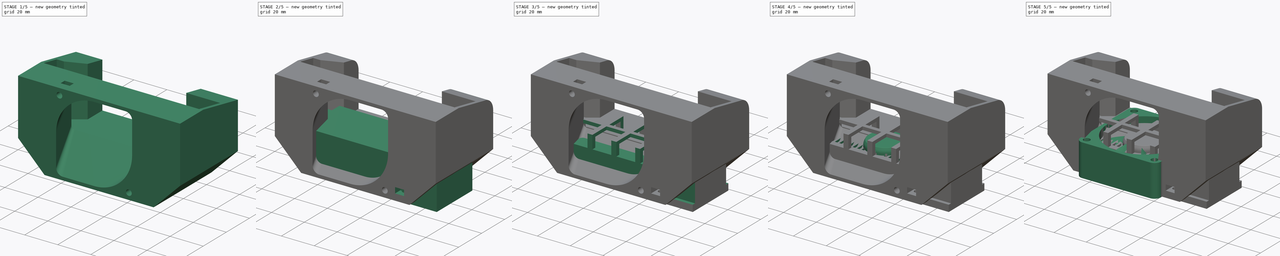
[diagram: build sequence overview — one tinted view per stage of 5, left to right]
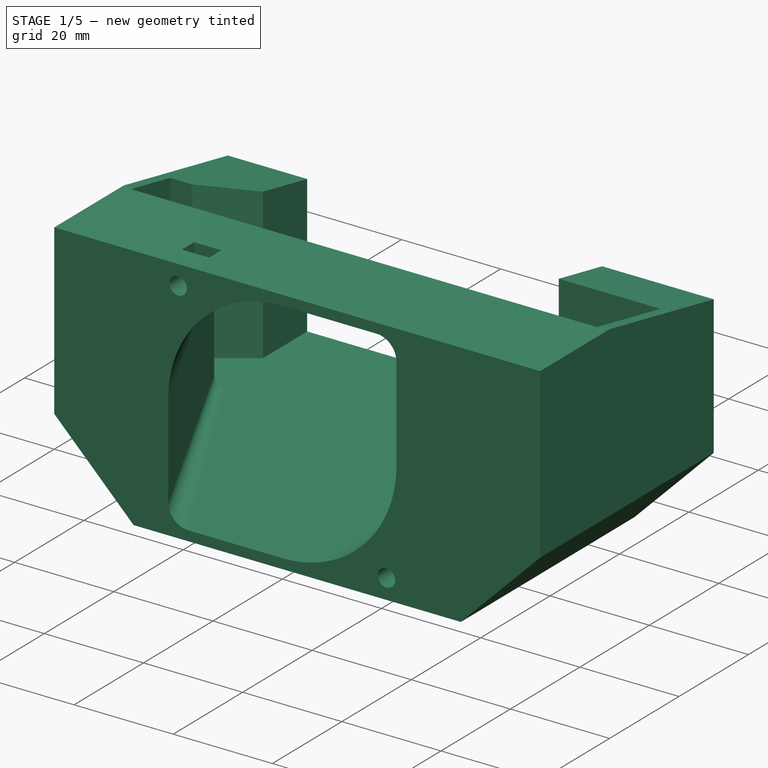
[diagram: stage 1 of 5 — iso view after this stage's code; geometry added in this stage tinted green]
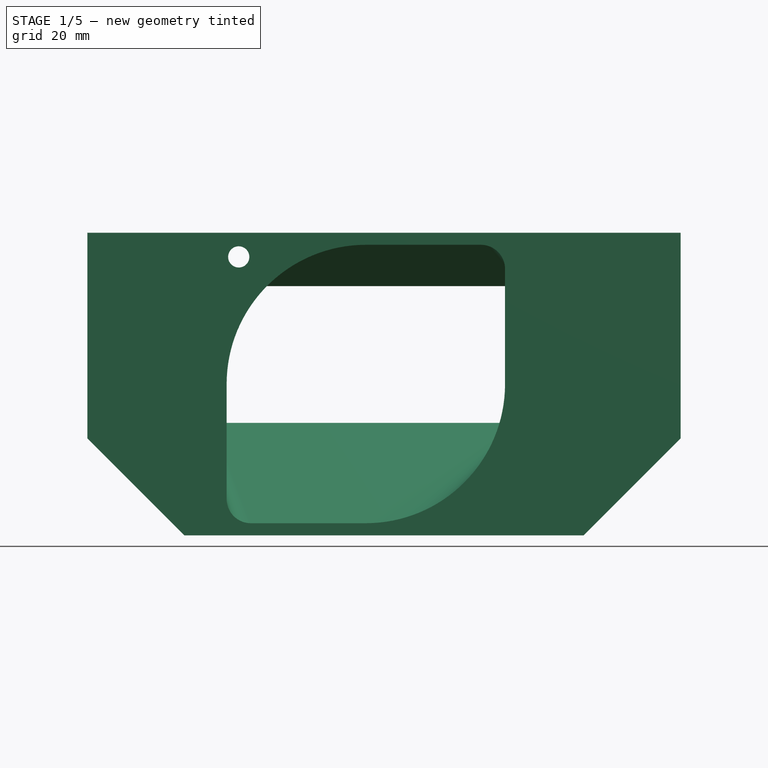
[diagram: stage 1 of 5 — front view after this stage's code; geometry added in this stage tinted green]
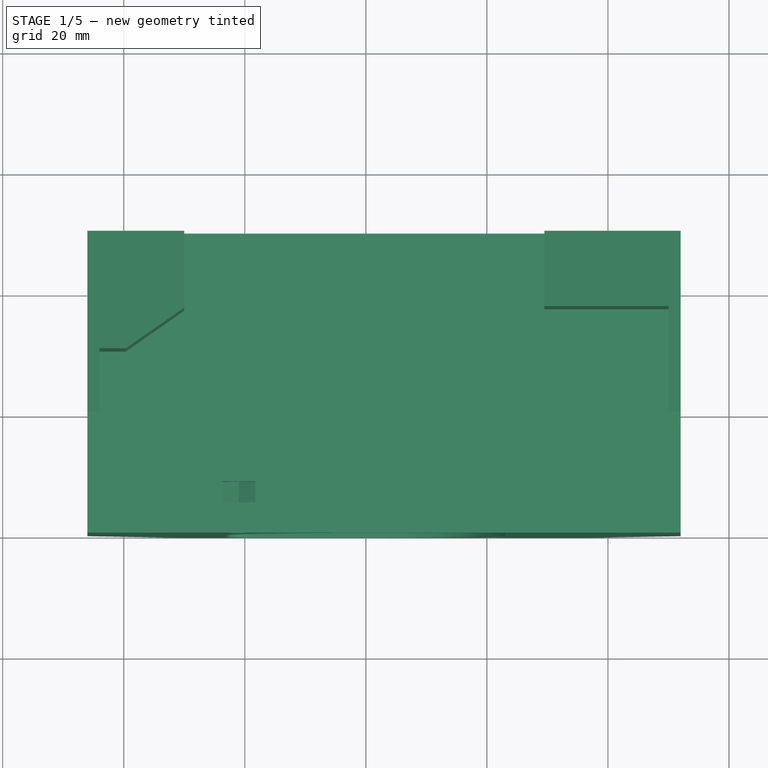
[diagram: stage 1 of 5 — top view after this stage's code; geometry added in this stage tinted green]
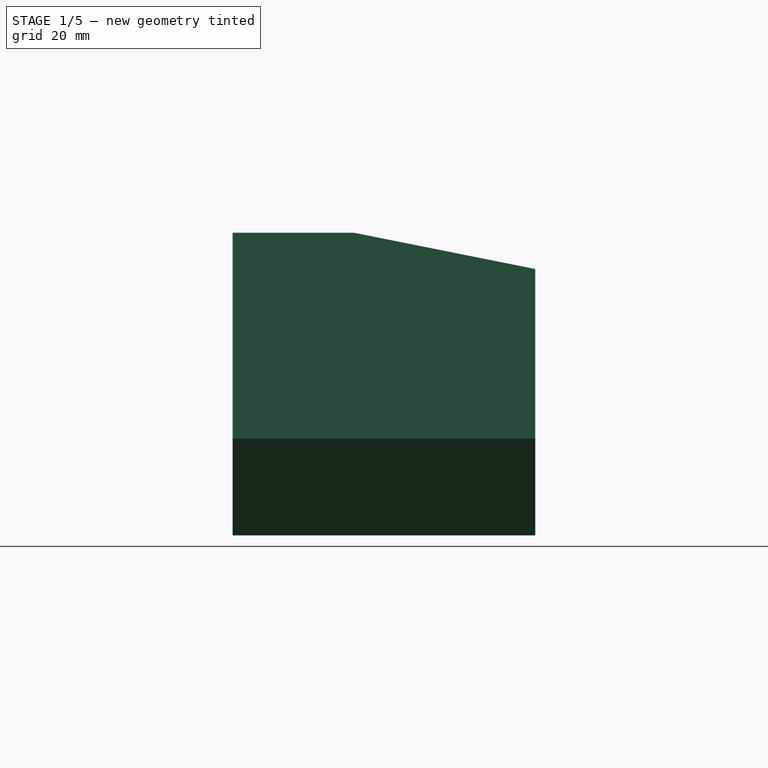
[diagram: stage 1 of 5 — right view after this stage's code; geometry added in this stage tinted green]
FCSTD DOCUMENT  (FreeCAD 1.0R39109 (Git))
Label: chamber-heater
License: All rights reserved
LicenseURL: http://en.wikipedia.org/wiki/All_rights_reserved
objects: Sketcher::SketchObject×27, PartDesign::Pocket×16, PartDesign::Pad×6, PartDesign::Body×5, PartDesign::Fillet×3, App::Part×3, PartDesign::PolarPattern×2, PartDesign::Groove×1, PartDesign::Chamfer×1, PartDesign::AdditiveHelix×1, PartDesign::LinearPattern×1, PartDesign::Mirrored×1, PartDesign::SubtractiveLoft×1
note: 154 computed .brp shape members not serialized (recipe doc carries the construction recipe); baked Part::Feature solids carry a one-line shape summary decoded from their .brp

FEATURE [Sketcher::SketchObject] Sketch
  ArcFitTolerance = 1e-06
  AttachmentSupport = -> [XY_Plane]
  FullyConstrained = true
  MakeInternals = false
  MapMode = 5
  sketch-geometry (4):
    g0: LineSegment StartX=-46 StartY=30 StartZ=0 EndX=-46 EndY=-20 EndZ=0
    g1: LineSegment StartX=-46 StartY=-20 StartZ=0 EndX=52 EndY=-20 EndZ=0
    g2: LineSegment StartX=52 StartY=-20 StartZ=0 EndX=52 EndY=30 EndZ=0
    g3: LineSegment StartX=52 StartY=30 StartZ=0 EndX=-46 EndY=30 EndZ=0
  constraints (12):
    c: Coincident(g0,g1)
    c: Coincident(g1,g2)
    c: Coincident(g2,g3)
    c: Coincident(g3,g0)
    c: Vertical(g0)
    c: Vertical(g2)
    c: Horizontal(g1)
    c: DistanceY(g1) = -20
    c: DistanceY(g2) = 30
    c: DistanceX(g0) = -46
    c: DistanceX(g2) = 52
    c: Horizontal(g3)
FEATURE [PartDesign::Pad] Pad
  Direction = (0,0,1)
  Length = 50
  Length2 = 10
  Profile = -> Sketch
  ReferenceAxis = -> Sketch [N_Axis]
  Suppressed = false
  Type = 0
FEATURE [PartDesign::Body] Body008  label="heater-case-drv"
  AllowCompound = false
  Group = -> [Sketch033,Pad011,Sketch034,Pocket011,Sketch035,Pocket012,Sketch036,Pocket013,Mirrored006,Sketch161,Pocket078,Sketch162,Pocket079,Sketch163,Pocket080]
  Origin = -> Origin010
  Tip = -> Pocket080
FEATURE [App::Part] Part001  label="heater"
  Group = -> [Body007,Body008]
  Origin = -> Origin011
  Placement = pos=(0,2,30) rot=(1,0,0;-1.5708rad)
FEATURE [PartDesign::SubtractiveLoft] SubtractiveLoft
  BaseFeature = -> Pad
  Closed = false
  Profile = -> Sketch029
  Ruled = false
  Sections = -> [Sketch030]
  Suppressed = false
FEATURE [Sketcher::SketchObject] Sketch242
  ArcFitTolerance = 1e-06
  AttachmentOffset = pos=(0,0,14) rot=(0,0,1;0rad)
  FullyConstrained = true
  MakeInternals = false
  MapMode = 5
  Placement = pos=(0,0,16.2) rot=(0,1,0;3.14159rad)
  sketch-geometry (26):
    g0: LineSegment [constr] StartX=43.5 StartY=0 StartZ=0 EndX=43.5 EndY=25 EndZ=0
    g1: LineSegment [constr] StartX=43.5 StartY=25 StartZ=0 EndX=-49.5 EndY=25 EndZ=0
    g2: LineSegment [constr] StartX=-49.5 StartY=25 StartZ=0 EndX=-49.5 EndY=0 EndZ=0
    g3: LineSegment [constr] StartX=-49.5 StartY=0 StartZ=0 EndX=43.5 EndY=0 EndZ=0
    g4: GeomPoint [constr] X=0 Y=0 Z=0
    g5: LineSegment [constr] StartX=-50 StartY=25.5 StartZ=0 EndX=-50 EndY=-0.5 EndZ=0
    g6: LineSegment StartX=-50 StartY=-0.5 StartZ=0 EndX=44 EndY=-0.5 EndZ=0
    g7: LineSegment [constr] StartX=44 StartY=-0.5 StartZ=0 EndX=44 EndY=25.5 EndZ=0
    g8: LineSegment [constr] StartX=44 StartY=25.5 StartZ=0 EndX=-50 EndY=25.5 EndZ=0
    g9: LineSegment [constr] StartX=-29 StartY=25 StartZ=0 EndX=-29 EndY=17 EndZ=0
    g10: LineSegment [constr] StartX=-29 StartY=17 StartZ=0 EndX=-49.5 EndY=17 EndZ=0
    g11: LineSegment [constr] StartX=43.5 StartY=10 StartZ=0 EndX=39.5 EndY=10 EndZ=0
    g12: LineSegment [constr] StartX=39.5 StartY=10 StartZ=0 EndX=29.5 EndY=17 EndZ=0
    g13: LineSegment [constr] StartX=29.5 StartY=17 StartZ=0 EndX=29.5 EndY=25 EndZ=0
    g14: LineSegment StartX=-50 StartY=-0.5 StartZ=0 EndX=-50 EndY=17.5 EndZ=0
    g15: LineSegment StartX=-50 StartY=17.5 StartZ=0 EndX=-29.5 EndY=17.5 EndZ=0
    g16: LineSegment StartX=-29.5 StartY=17.5 StartZ=0 EndX=-29.5 EndY=25.5 EndZ=0
    g17: LineSegment [constr] StartX=-29.5 StartY=25.5 StartZ=0 EndX=30 EndY=25.5 EndZ=0
    g18: LineSegment StartX=30 StartY=25.5 StartZ=0 EndX=30 EndY=17.2603 EndZ=0
    g19: LineSegment StartX=30 StartY=17.2603 StartZ=0 EndX=39.6576 EndY=10.5 EndZ=0
    g20: LineSegment StartX=39.6576 StartY=10.5 StartZ=0 EndX=44 EndY=10.5 EndZ=0
    g21: LineSegment StartX=44 StartY=10.5 StartZ=0 EndX=44 EndY=-0.5 EndZ=0
    g22: GeomPoint X=0 Y=45.5 Z=0
    g23: LineSegment StartX=-29.5 StartY=25.5 StartZ=0 EndX=-29.5 EndY=40 EndZ=0
    g24: LineSegment StartX=-29.5 StartY=40 StartZ=0 EndX=30 EndY=40 EndZ=0
    g25: LineSegment StartX=30 StartY=40 StartZ=0 EndX=30 EndY=25.5 EndZ=0
  constraints (76):
    c: Coincident(g0,g1)
    c: Coincident(g1,g2)
    c: Coincident(g2,g3)
    c: Coincident(g3,g0)
    c: Vertical(g0)
    c: Vertical(g2)
    c: Horizontal(g1)
    c: Horizontal(g3)
    c: DistanceY(g0,g0) = 25
    c: PointOnObject(g4,g3)
    c: DistanceX(g4,g0) = 43.5
    c: DistanceX(g2,g4) = 49.5
    c: Coincident(g5,g6)
    c: Coincident(g6,g7)
    c: Coincident(g7,g8)
    c: Coincident(g8,g5)
    c: Vertical(g5)
    c: Vertical(g7)
    c: Horizontal(g6)
    c: Horizontal(g8)
    c: DistanceX(g0,g6) = 0.5
    c: DistanceY(g6,g0) = 0.5
    c: DistanceY(g0,g7) = 0.5
    c: DistanceX(g5,g1) = 0.5
    c: PointOnObject(g9,g1)
    c: Vertical(g9)
    c: Coincident(g9,g10)
    c: Horizontal(g10)
    c: PointOnObject(g10,g2)
    c: DistanceX(g10,g10) = 20.5
    c: DistanceY(g9,g9) = 8
    c: PointOnObject(g11,g0)
    c: Coincident(g11,g12)
    c: Coincident(g12,g13)
    c: PointOnObject(g13,g1)
    c: Vertical(g13)
    c: Horizontal(g11)
    c: DistanceY(g11,g0) = 15
    c: DistanceX(g11,g11) = 4
    c: DistanceY(g13,g13) = 8
    c: DistanceX(g13,g0) = 14
    c: Coincident(g5,g14)
    c: PointOnObject(g14,g5)
    c: Coincident(g14,g15)
    c: Horizontal(g15)
    c: Coincident(g15,g16)
    c: PointOnObject(g16,g8)
    c: Vertical(g16)
    c: Coincident(g16,g17)
    c: PointOnObject(g17,g8)
    c: Coincident(g17,g18)
    c: Vertical(g18)
    c: Coincident(g18,g19)
    c: Coincident(g19,g20)
    c: PointOnObject(g20,g7)
    c: Horizontal(g20)
    c: Coincident(g20,g21)
    c: Coincident(g21,g6)
    c: DistanceY(g10,g14) = 0.5
    c: DistanceX(g16,g9) = 0.5
    c: DistanceX(g13,g17) = 0.5
    c: Distance(g18,g12) = 0.5
    c: Parallel(g19,g12)
    c: DistanceY(g11,g19) = 0.5
    c: PointOnObject(g22,g-2)
    c: DistanceY(g16,g22) = 20
    c: PointOnObject(g2,g-1)
    c: PointOnObject(g4,g-2)
    c: Coincident(g16,g23)
    c: Vertical(g23)
    c: Coincident(g23,g24)
    c: Horizontal(g24)
    c: Coincident(g24,g25)
    c: Coincident(g25,g17)
    c: Vertical(g25)
    c: DistanceY(g24) = 40
FEATURE [PartDesign::Pocket] Pocket
  BaseFeature = -> SubtractiveLoft
  Direction = (-1e-16,0,1)
  Length = 5
  Length2 = 5
  Profile = -> Sketch242
  ReferenceAxis = -> Sketch242 [N_Axis]
  Refine = true
  Suppressed = false
  Type = 1
FEATURE [Sketcher::SketchObject] Sketch243
  ArcFitTolerance = 1e-06
  AttachmentSupport = -> [YZ_Plane]
  FullyConstrained = true
  MakeInternals = false
  MapMode = 5
  Placement = pos=(0,0,0) rot=(0.57735,0.57735,0.57735;2.0944rad)
  sketch-geometry (3):
    g0: LineSegment StartX=30 StartY=44 StartZ=0 EndX=0 EndY=50 EndZ=0
    g1: LineSegment StartX=0 StartY=50 StartZ=0 EndX=30 EndY=50 EndZ=0
    g2: LineSegment StartX=30 StartY=50 StartZ=0 EndX=30 EndY=44 EndZ=0
  constraints (9):
    c: Coincident(g0,g1)
    c: Horizontal(g1)
    c: Coincident(g1,g2)
    c: Coincident(g2,g0)
    c: Vertical(g2)
    c: DistanceX(g0) = 30
    c: DistanceY(g0) = 50
    c: DistanceY(g0) = 44
    c: PointOnObject(g0,g-2)
FEATURE [PartDesign::Pocket] Pocket081
  BaseFeature = -> Pocket
  Direction = (-1,0,0)
  Length = 5
  Length2 = 5
  Midplane = true
  Profile = -> Sketch243
  ReferenceAxis = -> Sketch243 [N_Axis]
  Suppressed = false
  Type = 1
FEATURE [Sketcher::SketchObject] Sketch244
  ArcFitTolerance = 1e-06
  AttachmentSupport = -> [XZ_Plane]
  FullyConstrained = true
  MakeInternals = false
  MapMode = 5
  Placement = pos=(0,0,0) rot=(1,0,0;1.5708rad)
  sketch-geometry (6):
    g0: LineSegment StartX=-46 StartY=16 StartZ=0 EndX=-30 EndY=0 EndZ=0
    g1: LineSegment StartX=-30 StartY=0 StartZ=0 EndX=-46 EndY=0 EndZ=0
    g2: LineSegment StartX=-46 StartY=0 StartZ=0 EndX=-46 EndY=16 EndZ=0
    g3: LineSegment StartX=36 StartY=0 StartZ=0 EndX=52 EndY=16 EndZ=0
    g4: LineSegment StartX=52 StartY=16 StartZ=0 EndX=52 EndY=0 EndZ=0
    g5: LineSegment StartX=52 StartY=0 StartZ=0 EndX=36 EndY=0 EndZ=0
  constraints (18):
    c: PointOnObject(g0,g-1)
    c: Coincident(g0,g1)
    c: PointOnObject(g1,g-1)
    c: Coincident(g1,g2)
    c: Coincident(g2,g0)
    c: Vertical(g2)
    c: Equal(g2,g1)
    c: DistanceX(g1) = -46
    c: DistanceY(g0,g0) = 16
    c: PointOnObject(g3,g-1)
    c: Coincident(g3,g4)
    c: PointOnObject(g4,g-1)
    c: Vertical(g4)
    c: Coincident(g4,g5)
    c: Coincident(g5,g3)
    c: Equal(g5,g1)
    c: Horizontal(g3,g0)
    c: DistanceX(g4) = 52
FEATURE [PartDesign::Pocket] Pocket082
  BaseFeature = -> Pocket081
  Direction = (0,1,-2e-16)
  Length = 5
  Length2 = 5
  Midplane = true
  Profile = -> Sketch244
  ReferenceAxis = -> Sketch244 [N_Axis]
  Suppressed = false
  Type = 1
FEATURE [Sketcher::SketchObject] Sketch245
  ArcFitTolerance = 1e-06
  AttachmentSupport = -> [XZ_Plane]
  FullyConstrained = true
  MakeInternals = false
  MapMode = 5
  Placement = pos=(0,0,0) rot=(1,0,0;1.5708rad)
  sketch-geometry (3):
    g0: Circle CenterX=-21 CenterY=46 CenterZ=0 NormalX=0 NormalY=0 NormalZ=1 AngleXU=0 Radius=1.75
    g1: Circle CenterX=21 CenterY=4 CenterZ=0 NormalX=0 NormalY=0 NormalZ=1 AngleXU=0 Radius=1.75
    g2: GeomPoint X=0 Y=25 Z=0
  constraints (7):
    c: PointOnObject(g2,g-2)
    c: DistanceY(g2) = 25
    c: Symmetric(g1,g0,g2)
    c: Equal(g0,g1)
    c: Diameter(g1) = 3.5
    c: DistanceX(g1) = 21
    c: DistanceY(g1) = 4
FEATURE [PartDesign::Pocket] Pocket083
  BaseFeature = -> Pocket082
  Direction = (0,1,-2e-16)
  Length = 5
  Length2 = 5
  Profile = -> Sketch245
  ReferenceAxis = -> Sketch245 [N_Axis]
  Reversed = true
  Suppressed = false
  Type = 1
FEATURE [Sketcher::SketchObject] Sketch246
  ArcFitTolerance = 1e-06
  AttachmentOffset = pos=(0,0,15) rot=(0,0,1;0rad)
  AttachmentSupport = -> [XZ_Plane]
  FullyConstrained = true
  MakeInternals = false
  MapMode = 5
  Placement = pos=(0,-15,3.3e-15) rot=(1,0,0;1.5708rad)
  sketch-geometry (21):
    g0: GeomPoint X=0 Y=25 Z=0
    g1: LineSegment StartX=-18.25 StartY=44.4123 StartZ=0 EndX=-18.25 EndY=47.5877 EndZ=0
    g2: LineSegment [constr] StartX=-18.25 StartY=47.5877 StartZ=0 EndX=-21 EndY=49.1754 EndZ=0
    g3: LineSegment [constr] StartX=-21 StartY=49.1754 StartZ=0 EndX=-23.75 EndY=47.5877 EndZ=0
    g4: LineSegment StartX=-23.75 StartY=47.5877 StartZ=0 EndX=-23.75 EndY=44.4123 EndZ=0
    g5: LineSegment StartX=-23.75 StartY=44.4123 StartZ=0 EndX=-21 EndY=42.8246 EndZ=0
    g6: LineSegment StartX=-21 StartY=42.8246 StartZ=0 EndX=-18.25 EndY=44.4123 EndZ=0
    g7: Circle [constr] CenterX=-21 CenterY=46 CenterZ=0 NormalX=0 NormalY=0 NormalZ=1 AngleXU=0 Radius=3.17543
    g8: LineSegment StartX=23.75 StartY=5.58771 StartZ=0 EndX=21 EndY=7.17543 EndZ=0
    g9: LineSegment StartX=21 StartY=7.17543 StartZ=0 EndX=18.25 EndY=5.58771 EndZ=0
    g10: LineSegment StartX=18.25 StartY=5.58771 StartZ=0 EndX=18.25 EndY=2.41229 EndZ=0
    g11: LineSegment [constr] StartX=18.25 StartY=2.41229 StartZ=0 EndX=21 EndY=0.824574 EndZ=0
    g12: LineSegment [constr] StartX=21 StartY=0.824574 StartZ=0 EndX=23.75 EndY=2.41229 EndZ=0
    g13: LineSegment StartX=23.75 StartY=2.41229 StartZ=0 EndX=23.75 EndY=5.58771 EndZ=0
    g14: Circle [constr] CenterX=21 CenterY=4 CenterZ=0 NormalX=0 NormalY=0 NormalZ=1 AngleXU=0 Radius=3.17543
    g15: LineSegment StartX=23.75 StartY=2.41229 StartZ=0 EndX=23.75 EndY=0 EndZ=0
    g16: LineSegment StartX=23.75 StartY=0 StartZ=0 EndX=18.25 EndY=0 EndZ=0
    g17: LineSegment StartX=18.25 StartY=0 StartZ=0 EndX=18.25 EndY=2.41229 EndZ=0
    g18: LineSegment StartX=-23.75 StartY=47.5877 StartZ=0 EndX=-23.75 EndY=50 EndZ=0
    g19: LineSegment StartX=-23.75 StartY=50 StartZ=0 EndX=-18.25 EndY=50 EndZ=0
    g20: LineSegment StartX=-18.25 StartY=50 StartZ=0 EndX=-18.25 EndY=47.5877 EndZ=0
  constraints (51):
    c: PointOnObject(g0,g-2)
    c: DistanceY(g0) = 25
    c: Coincident(g1,g2)
    c: Coincident(g2,g3)
    c: Coincident(g3,g4)
    c: Coincident(g4,g5)
    c: Coincident(g5,g6)
    c: Coincident(g6,g1)
    c: Equal(g1, g2-g6) x5
    c: PointOnObject(g1,g7)
    c: PointOnObject(g2,g7)
    c: PointOnObject(g3,g7)
    c: PointOnObject(g4,g7)
    c: PointOnObject(g5,g7)
    c: PointOnObject(g6,g7)
    c: Coincident(g8,g9)
    c: Coincident(g9,g10)
    c: Coincident(g10,g11)
    c: Coincident(g11,g12)
    c: Coincident(g12,g13)
    c: Coincident(g13,g8)
    c: Equal(g8, g9-g13) x5
    c: PointOnObject(g8,g14)
    c: PointOnObject(g9,g14)
    c: PointOnObject(g10,g14)
    c: PointOnObject(g11,g14)
    c: PointOnObject(g12,g14)
    c: PointOnObject(g13,g14)
    c: Equal(g7,g14)
    c: DistanceX(g14) = 21
    c: DistanceY(g14) = 4
    c: Symmetric(g14,g7,g0)
    c: Vertical(g4)
    c: DistanceX(g3,g1) = 5.5
    c: Vertical(g10)
    c: Coincident(g12,g15)
    c: PointOnObject(g15,g-1)
    c: Vertical(g15)
    c: Coincident(g15,g16)
    c: PointOnObject(g16,g-1)
    c: Coincident(g16,g17)
    c: Coincident(g17,g10)
    c: Vertical(g17)
    c: Coincident(g3,g18)
    c: Vertical(g18)
    c: Coincident(g18,g19)
    c: Horizontal(g19)
    c: Coincident(g19,g20)
    c: Coincident(g20,g1)
    c: Vertical(g20)
    c: DistanceY(g19) = 50
FEATURE [PartDesign::Pocket] Pocket084
  BaseFeature = -> Pocket083
  Direction = (0,1,-2e-16)
  Length = 3.5
  Length2 = 5
  Profile = -> Sketch246
  ReferenceAxis = -> Sketch246 [N_Axis]
  Refine = true
  Suppressed = false
  Type = 0
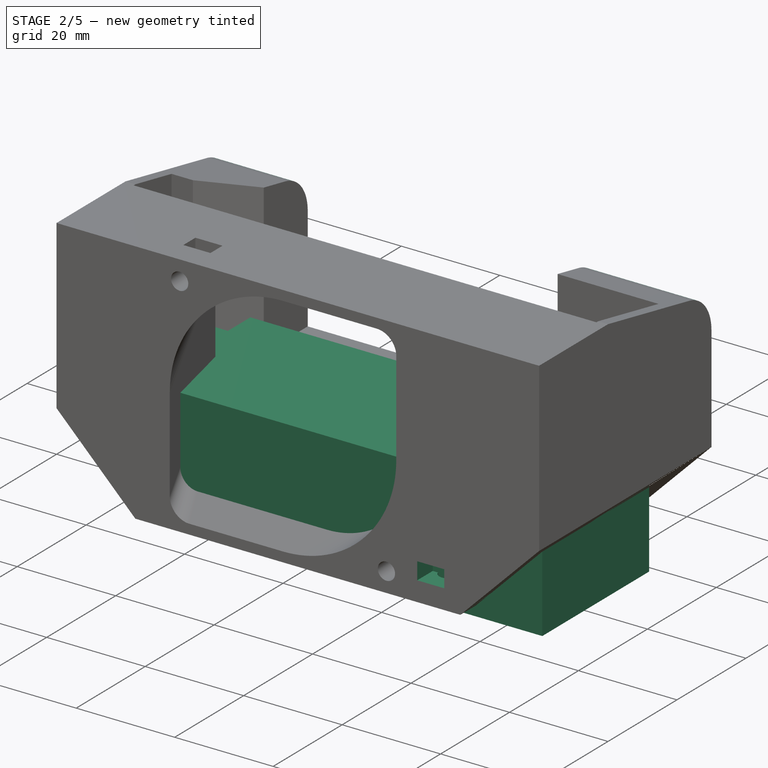
[diagram: stage 2 of 5 — iso view after this stage's code; geometry added in this stage tinted green]
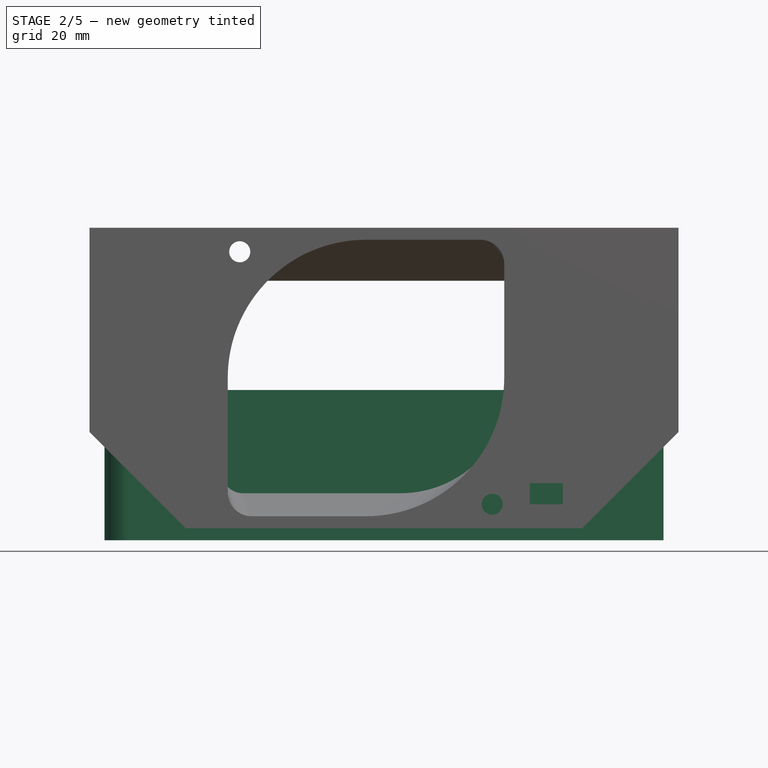
[diagram: stage 2 of 5 — front view after this stage's code; geometry added in this stage tinted green]
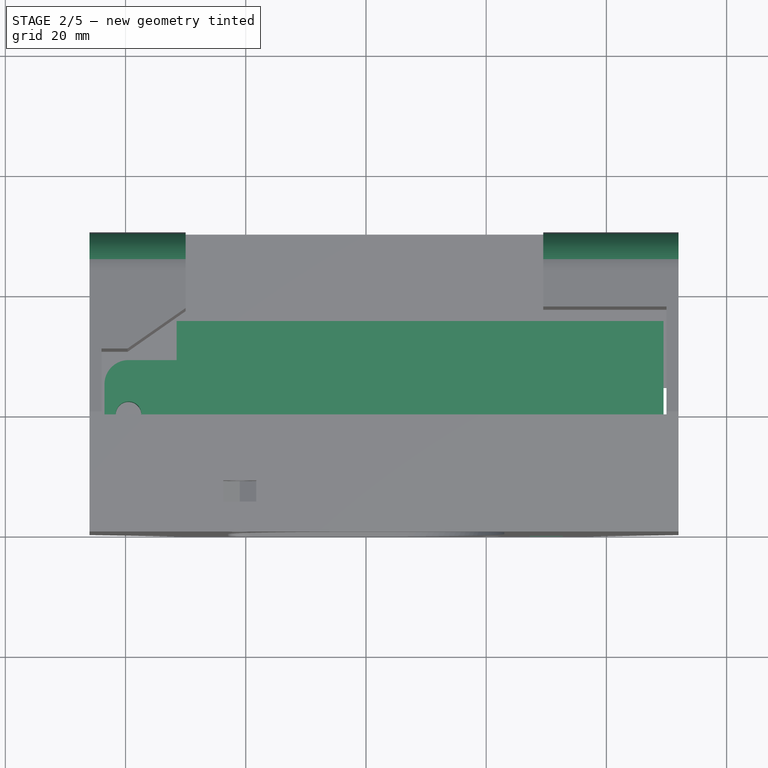
[diagram: stage 2 of 5 — top view after this stage's code; geometry added in this stage tinted green]
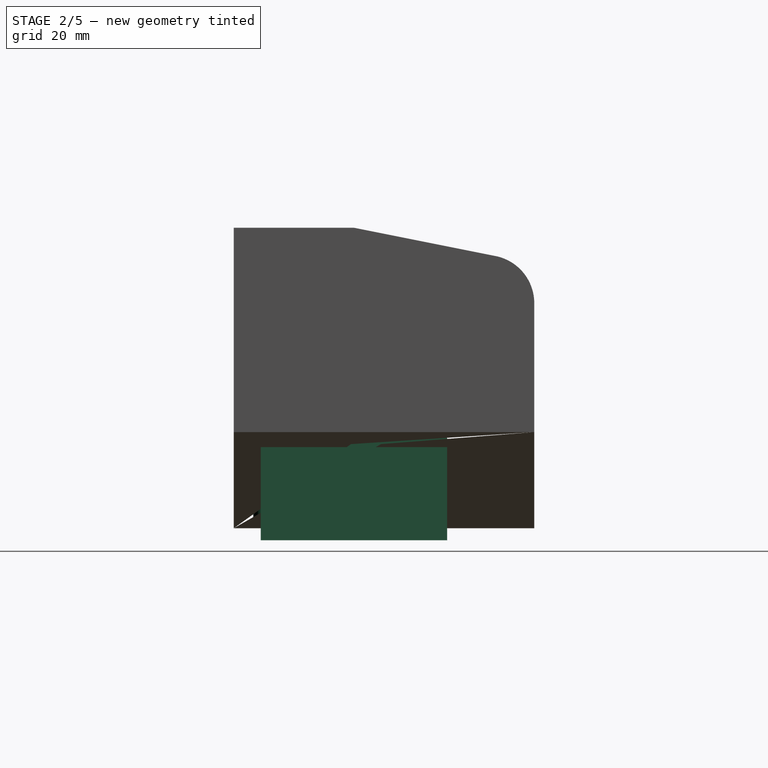
[diagram: stage 2 of 5 — right view after this stage's code; geometry added in this stage tinted green]
FEATURE [PartDesign::Body] Body007  label="heater-core-drv"
  AllowCompound = false
  Group = -> [Sketch031,Pad010,Sketch032,Pocket010,LinearPattern]
  Origin = -> Origin008
  Tip = -> LinearPattern
FEATURE [Sketcher::SketchObject] Sketch033
  ArcFitTolerance = 0
  AttachmentSupport = -> [XY_Plane010]
  FullyConstrained = true
  MakeInternals = false
  MapMode = 5
  sketch-geometry (18):
    g0: LineSegment StartX=-31.5 StartY=15.5 StartZ=0 EndX=49.5 EndY=15.5 EndZ=0
    g1: LineSegment StartX=49.5 StartY=15.5 StartZ=0 EndX=49.5 EndY=-15.5 EndZ=0
    g2: LineSegment StartX=49.5 StartY=-15.5 StartZ=0 EndX=-31.5 EndY=-15.5 EndZ=0
    g3: LineSegment [constr] StartX=-31.5 StartY=-15.5 StartZ=0 EndX=-31.5 EndY=15.5 EndZ=0
    g4: LineSegment [constr] StartX=-27.5 StartY=11 StartZ=0 EndX=27.5 EndY=11 EndZ=0
    g5: LineSegment [constr] StartX=27.5 StartY=11 StartZ=0 EndX=27.5 EndY=-11 EndZ=0
    g6: LineSegment [constr] StartX=27.5 StartY=-11 StartZ=0 EndX=-27.5 EndY=-11 EndZ=0
    g7: LineSegment [constr] StartX=-27.5 StartY=-11 StartZ=0 EndX=-27.5 EndY=11 EndZ=0
    g8: LineSegment StartX=-31.5 StartY=15.5 StartZ=0 EndX=-31.5 EndY=9 EndZ=0
    g9: LineSegment StartX=-31.5 StartY=9 StartZ=0 EndX=-39.5 EndY=9 EndZ=0
    g10: LineSegment StartX=-43.5 StartY=5 StartZ=0 EndX=-43.5 EndY=-5 EndZ=0
    g11: LineSegment StartX=-39.5 StartY=-9 StartZ=0 EndX=-31.5 EndY=-9 EndZ=0
    g12: LineSegment StartX=-31.5 StartY=-9 StartZ=0 EndX=-31.5 EndY=-15.5 EndZ=0
    g13: ArcOfCircle CenterX=-39.5 CenterY=5 CenterZ=0 NormalX=0 NormalY=0 NormalZ=1 AngleXU=0 Radius=4 StartAngle=1.5708 EndAngle=3.14159
    g14: GeomPoint [constr] X=-43.5 Y=9 Z=0
    g15: ArcOfCircle CenterX=-39.5 CenterY=-5 CenterZ=0 NormalX=0 NormalY=0 NormalZ=1 AngleXU=0 Radius=4 StartAngle=3.14159 EndAngle=4.71239
    g16: GeomPoint [constr] X=-43.5 Y=-9 Z=0
    g17: Circle CenterX=-39.5 CenterY=0 CenterZ=0 NormalX=0 NormalY=0 NormalZ=1 AngleXU=0 Radius=2.125
  constraints (46):
    c: Coincident(g0,g1)
    c: Coincident(g1,g2)
    c: Coincident(g2,g3)
    c: Coincident(g3,g0)
    c: Horizontal(g0)
    c: Horizontal(g2)
    c: Vertical(g1)
    c: Symmetric(g2,g0,g-1)
    c: Coincident(g4,g5)
    c: Coincident(g5,g6)
    c: Coincident(g6,g7)
    c: Coincident(g7,g4)
    c: Horizontal(g4)
    c: Horizontal(g6)
    c: Vertical(g5)
    c: Vertical(g7)
    c: Symmetric(g5,g4,g-1)
    c: DistanceY(g7,g7) = 22
    c: DistanceX(g4,g4) = 55
    c: DistanceX(g0,g4) = 4
    c: DistanceX(g4,g0) = 22
    c: DistanceY(g3,g3) = 31
    c: Coincident(g0,g8)
    c: PointOnObject(g8,g3)
    c: Coincident(g8,g9)
    c: Horizontal(g9)
    c: Vertical(g10)
    c: Horizontal(g11)
    c: Coincident(g11,g12)
    c: Coincident(g12,g2)
    c: Symmetric(g11,g8,g-1)
    c: DistanceX(g14,g4) = 16
    c: DistanceY(g16,g14) = 18
    c: PointOnObject(g14,g9)
    c: PointOnObject(g14,g10)
    c: Tangent(g9,g13) = -1.5708
    c: Tangent(g10,g13) = -1.5708
    c: PointOnObject(g16,g10)
    c: PointOnObject(g16,g11)
    c: Tangent(g10,g15) = -1.5708
    c: Tangent(g11,g15) = -1.5708
    c: Equal(g15,g13)
    c: Radius(g13) = 4
    c: PointOnObject(g17,g-1)
    c: Vertical(g17,g13)
    c: Diameter(g17) = 4.25
FEATURE [PartDesign::Pad] Pad011
  Direction = (0,0,1)
  Length = 23
  Length2 = 2
  Profile = -> Sketch033
  ReferenceAxis = -> Sketch033 [N_Axis]
  Suppressed = false
  Type = 4
FEATURE [Sketcher::SketchObject] Sketch034
  ArcFitTolerance = 0
  AttachmentSupport = -> [XY_Plane010]
  FullyConstrained = true
  MakeInternals = false
  MapMode = 5
  sketch-geometry (4):
    g0: LineSegment StartX=-27.5 StartY=11 StartZ=0 EndX=27.5 EndY=11 EndZ=0
    g1: LineSegment StartX=27.5 StartY=11 StartZ=0 EndX=27.5 EndY=-11 EndZ=0
    g2: LineSegment StartX=27.5 StartY=-11 StartZ=0 EndX=-27.5 EndY=-11 EndZ=0
    g3: LineSegment StartX=-27.5 StartY=-11 StartZ=0 EndX=-27.5 EndY=11 EndZ=0
  constraints (11):
    c: Coincident(g0,g1)
    c: Coincident(g1,g2)
    c: Coincident(g2,g3)
    c: Coincident(g3,g0)
    c: Horizontal(g0)
    c: Horizontal(g2)
    c: Vertical(g1)
    c: Vertical(g3)
    c: Symmetric(g1,g0,g-1)
    c: DistanceX(g0,g0) = 55
    c: DistanceY(g3,g3) = 22
FEATURE [PartDesign::Pocket] Pocket011
  BaseFeature = -> Pad011
  Direction = (0,0,-1)
  Length = 21
  Length2 = 5
  Profile = -> Sketch034
  ReferenceAxis = -> Sketch034 [N_Axis]
  Reversed = true
  Suppressed = false
  Type = 0
FEATURE [Sketcher::SketchObject] Sketch247
  ArcFitTolerance = 1e-06
  AttachmentOffset = pos=(0,0,14) rot=(0,0,1;0rad)
  AttachmentSupport = -> [XY_Plane]
  FullyConstrained = true
  MakeInternals = false
  MapMode = 5
  Placement = pos=(0,0,14) rot=(0,0,1;0rad)
  sketch-geometry (4):
    g0: LineSegment StartX=-32 StartY=4.5 StartZ=0 EndX=-32 EndY=-0.5 EndZ=0
    g1: LineSegment StartX=-32 StartY=-0.5 StartZ=0 EndX=50 EndY=-0.5 EndZ=0
    g2: LineSegment StartX=50 StartY=-0.5 StartZ=0 EndX=50 EndY=4.5 EndZ=0
    g3: LineSegment StartX=50 StartY=4.5 StartZ=0 EndX=-32 EndY=4.5 EndZ=0
  constraints (12):
    c: Coincident(g0,g1)
    c: Coincident(g1,g2)
    c: Coincident(g2,g3)
    c: Coincident(g3,g0)
    c: Vertical(g0)
    c: Vertical(g2)
    c: Horizontal(g1)
    c: Horizontal(g3)
    c: DistanceX(g0) = -32
    c: DistanceY(g0) = 4.5
    c: DistanceY(g0) = -0.5
    c: DistanceX(g1) = 50
FEATURE [PartDesign::Pocket] Pocket085
  BaseFeature = -> Pocket084
  Direction = (0,0,-1)
  Length = 5
  Length2 = 5
  Profile = -> Sketch247
  ReferenceAxis = -> Sketch247 [N_Axis]
  Refine = true
  Reversed = true
  Suppressed = false
  Type = 1
FEATURE [PartDesign::Fillet] Fillet
  Base = -> Pocket085 [Edge37,Edge42]
  BaseFeature = -> Pocket085
  Radius = 8
  SupportTransform = false
  Suppressed = false
  UseAllEdges = false
FEATURE [Sketcher::SketchObject] Sketch248
  ArcFitTolerance = 1e-06
  AttachmentSupport = -> [XY_Plane]
  FullyConstrained = true
  MakeInternals = false
  MapMode = 5
  sketch-geometry (2):
    g0: Circle CenterX=30 CenterY=-15 CenterZ=0 NormalX=0 NormalY=0 NormalZ=1 AngleXU=0 Radius=1.75
    g1: Circle CenterX=-24 CenterY=25 CenterZ=0 NormalX=0 NormalY=0 NormalZ=1 AngleXU=0 Radius=1.75
  constraints (6):
    c: Equal(g1,g0)
    c: DistanceX(g0) = 30
    c: DistanceY(g0) = -15
    c: Diameter(g0) = 3.5
    c: DistanceX(g1) = -24
    c: DistanceY(g1) = 25
FEATURE [PartDesign::Pocket] Pocket086
  BaseFeature = -> Fillet
  Direction = (0,0,-1)
  Length = 10
  Length2 = 5
  Profile = -> Sketch248
  ReferenceAxis = -> Sketch248 [N_Axis]
  Reversed = true
  Suppressed = false
  Type = 0
FEATURE [Sketcher::SketchObject] Sketch249
  ArcFitTolerance = 1e-06
  AttachmentOffset = pos=(0,0,4) rot=(0,0,1;0rad)
  AttachmentSupport = -> [XY_Plane]
  FullyConstrained = true
  MakeInternals = false
  MapMode = 5
  Placement = pos=(0,0,4) rot=(0,0,1;0rad)
  sketch-geometry (20):
    g0: LineSegment StartX=-24 StartY=21.8246 StartZ=0 EndX=-21.25 EndY=23.4123 EndZ=0
    g1: LineSegment StartX=-21.25 StartY=23.4123 StartZ=0 EndX=-21.25 EndY=26.5877 EndZ=0
    g2: LineSegment [constr] StartX=-21.25 StartY=26.5877 StartZ=0 EndX=-24 EndY=28.1754 EndZ=0
    g3: LineSegment [constr] StartX=-24 StartY=28.1754 StartZ=0 EndX=-26.75 EndY=26.5877 EndZ=0
    g4: LineSegment StartX=-26.75 StartY=26.5877 StartZ=0 EndX=-26.75 EndY=23.4123 EndZ=0
    g5: LineSegment StartX=-26.75 StartY=23.4123 StartZ=0 EndX=-24 EndY=21.8246 EndZ=0
    g6: Circle [constr] CenterX=-24 CenterY=25 CenterZ=0 NormalX=0 NormalY=0 NormalZ=1 AngleXU=0 Radius=3.17543
    g7: LineSegment StartX=32.75 StartY=-13.4123 StartZ=0 EndX=30 EndY=-11.8246 EndZ=0
    g8: LineSegment StartX=30 StartY=-11.8246 StartZ=0 EndX=27.25 EndY=-13.4123 EndZ=0
    g9: LineSegment StartX=27.25 StartY=-13.4123 StartZ=0 EndX=27.25 EndY=-16.5877 EndZ=0
    g10: LineSegment [constr] StartX=27.25 StartY=-16.5877 StartZ=0 EndX=30 EndY=-18.1754 EndZ=0
    g11: LineSegment [constr] StartX=30 StartY=-18.1754 StartZ=0 EndX=32.75 EndY=-16.5877 EndZ=0
    g12: LineSegment StartX=32.75 StartY=-16.5877 StartZ=0 EndX=32.75 EndY=-13.4123 EndZ=0
    g13: Circle [constr] CenterX=30 CenterY=-15 CenterZ=0 NormalX=0 NormalY=0 NormalZ=1 AngleXU=0 Radius=3.17543
    g14: LineSegment StartX=-26.75 StartY=26.5877 StartZ=0 EndX=-26.75 EndY=30 EndZ=0
    g15: LineSegment StartX=-26.75 StartY=30 StartZ=0 EndX=-21.25 EndY=30 EndZ=0
    g16: LineSegment StartX=-21.25 StartY=30 StartZ=0 EndX=-21.25 EndY=26.5877 EndZ=0
    g17: LineSegment StartX=32.75 StartY=-16.5877 StartZ=0 EndX=32.75 EndY=-20 EndZ=0
    g18: LineSegment StartX=32.75 StartY=-20 StartZ=0 EndX=27.25 EndY=-20 EndZ=0
    g19: LineSegment StartX=27.25 StartY=-20 StartZ=0 EndX=27.25 EndY=-16.5877 EndZ=0
  constraints (50):
    c: Coincident(g0,g1)
    c: Coincident(g1,g2)
    c: Coincident(g2,g3)
    c: Coincident(g3,g4)
    c: Coincident(g4,g5)
    c: Coincident(g5,g0)
    c: Equal(g0, g1-g5) x5
    c: PointOnObject(g0,g6)
    c: PointOnObject(g1,g6)
    c: PointOnObject(g2,g6)
    c: PointOnObject(g3,g6)
    c: PointOnObject(g4,g6)
    c: PointOnObject(g5,g6)
    c: Coincident(g7,g8)
    c: Coincident(g8,g9)
    c: Coincident(g9,g10)
    c: Coincident(g10,g11)
    c: Coincident(g11,g12)
    c: Coincident(g12,g7)
    c: Equal(g7, g8-g12) x5
    c: PointOnObject(g7,g13)
    c: PointOnObject(g8,g13)
    c: PointOnObject(g9,g13)
    c: PointOnObject(g10,g13)
    c: PointOnObject(g11,g13)
    c: PointOnObject(g12,g13)
    c: DistanceX(g13) = 30
    c: DistanceY(g13) = -15
    c: DistanceX(g6) = -24
    c: DistanceY(g6) = 25
    c: Vertical(g12)
    c: Vertical(g1)
    c: Equal(g6,g13)
    c: DistanceX(g8,g7) = 5.5
    c: Coincident(g3,g14)
    c: Vertical(g14)
    c: Coincident(g14,g15)
    c: Horizontal(g15)
    c: Coincident(g15,g16)
    c: Coincident(g16,g1)
    c: Vertical(g16)
    c: DistanceY(g15) = 30
    c: Coincident(g11,g17)
    c: Vertical(g17)
    c: Coincident(g17,g18)
    c: Horizontal(g18)
    c: Coincident(g18,g19)
    c: Coincident(g19,g9)
    c: Vertical(g19)
    c: DistanceY(g18) = -20
FEATURE [PartDesign::Pocket] Pocket087
  BaseFeature = -> Pocket086
  Direction = (0,0,-1)
  Length = 3.5
  Length2 = 5
  Profile = -> Sketch249
  ReferenceAxis = -> Sketch249 [N_Axis]
  Refine = true
  Reversed = true
  Suppressed = false
  Type = 0
FEATURE [PartDesign::Body] Body  label="housing"
  AllowCompound = false
  Group = -> [Sketch,Pad,Sketch029,Sketch030,SubtractiveLoft,Sketch242,Pocket,Sketch243,Pocket081,Sketch244,Pocket082,Sketch245,Pocket083,Sketch246,Pocket084,Sketch247,Pocket085,Fillet,Sketch248,Pocket086,Sketch249,Pocket087]
  Origin = -> Origin
  Tip = -> Pocket087
FEATURE [App::Part] Part002  label="main"
  Group = -> [Body,Part,Part001]
  Origin = -> Origin012
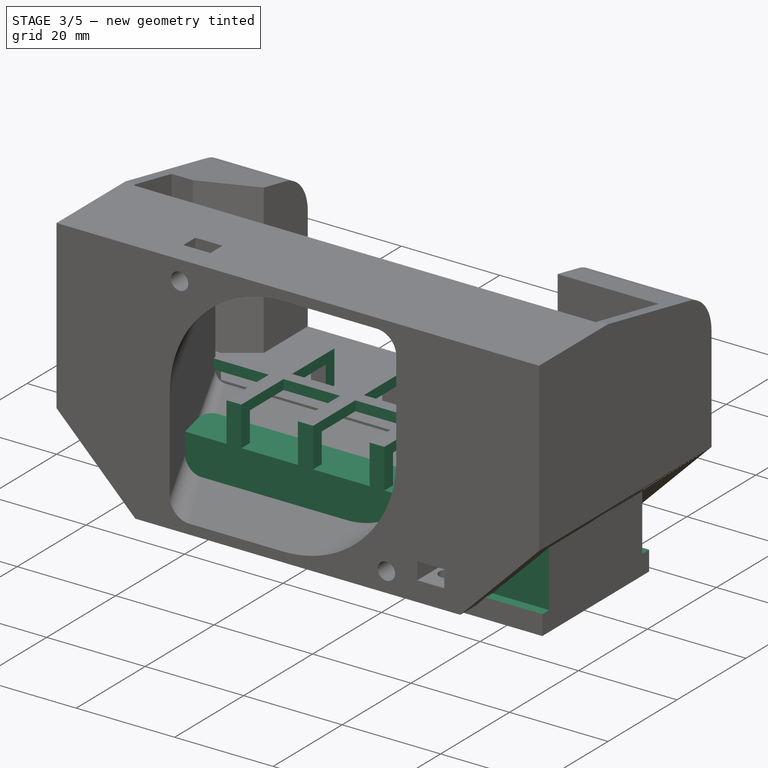
[diagram: stage 3 of 5 — iso view after this stage's code; geometry added in this stage tinted green]
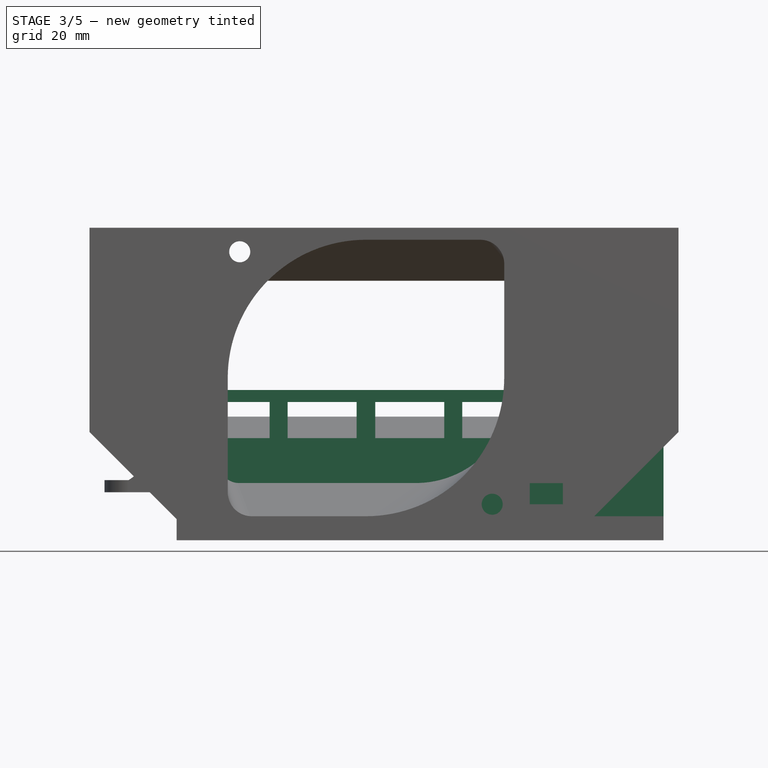
[diagram: stage 3 of 5 — front view after this stage's code; geometry added in this stage tinted green]
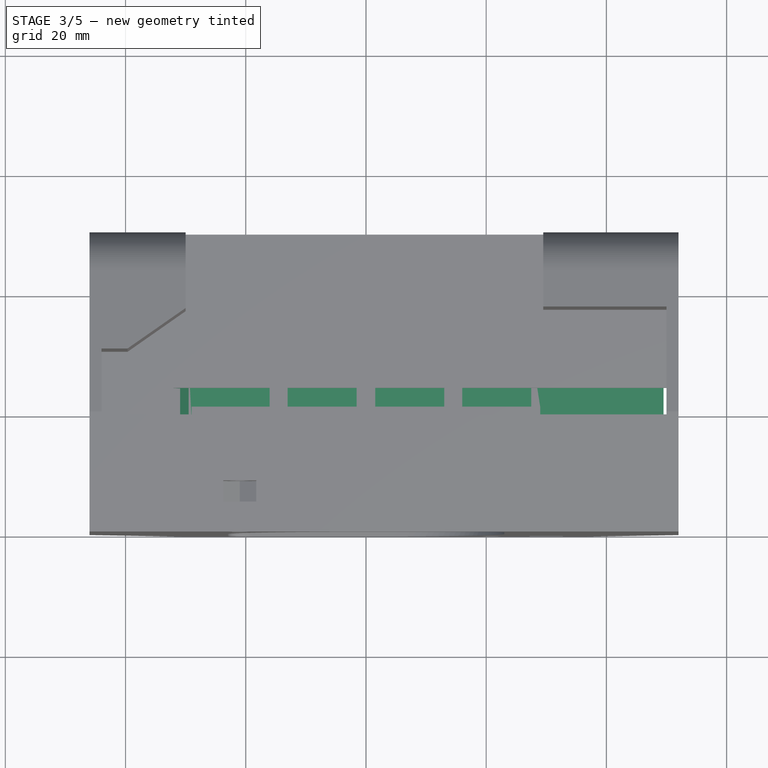
[diagram: stage 3 of 5 — top view after this stage's code; geometry added in this stage tinted green]
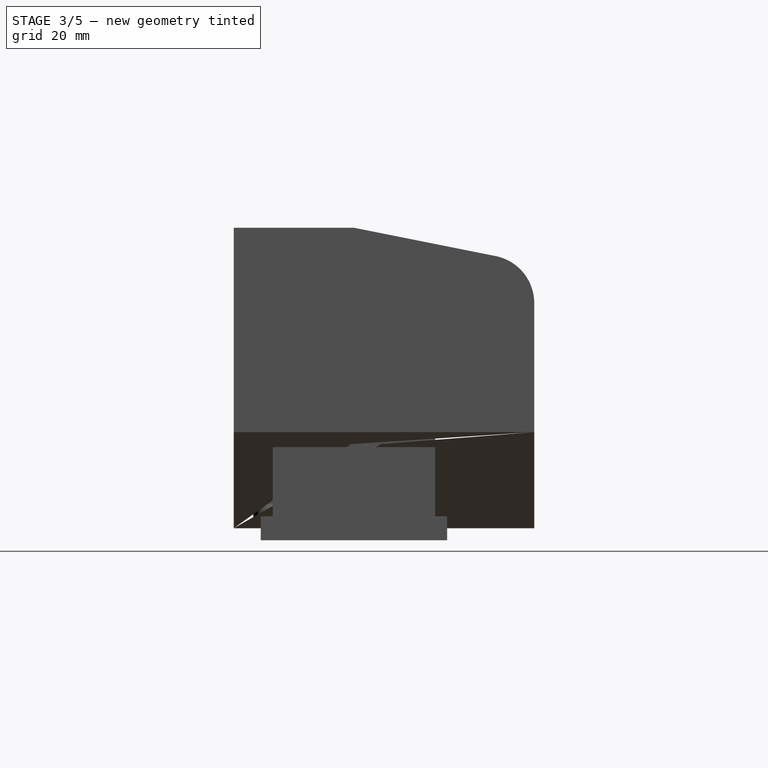
[diagram: stage 3 of 5 — right view after this stage's code; geometry added in this stage tinted green]
FEATURE [PartDesign::Body] Body006  label="5020-fan-rotor-drv"
  AllowCompound = false
  Group = -> [Sketch025,Pad009,Sketch026,Sketch027,Sketch028,Chamfer,Fillet003,Fillet004,AdditiveHelix,PolarPattern003,Pocket014]
  Origin = -> Origin006
  Tip = -> Pocket014
FEATURE [App::Part] Part  label="fan"
  Group = -> [Body005,Body006]
  Origin = -> Origin007
  Placement = pos=(0,-20,25) rot=(1,0,0;1.5708rad)
FEATURE [Sketcher::SketchObject] Sketch029
  ArcFitTolerance = 1e-06
  AttachmentOffset = pos=(0,0,20) rot=(0,0,1;0rad)
  AttachmentSupport = -> [XZ_Plane]
  FullyConstrained = true
  MakeInternals = false
  MapMode = 5
  Placement = pos=(0,-20,4.4e-15) rot=(1,0,0;1.5708rad)
  sketch-geometry (13):
    g0: LineSegment StartX=-23 StartY=25 StartZ=0 EndX=-23 EndY=6 EndZ=0
    g1: LineSegment StartX=-19 StartY=2 StartZ=0 EndX=3.55e-14 EndY=2 EndZ=0
    g2: LineSegment StartX=23 StartY=25 StartZ=0 EndX=23 EndY=44 EndZ=0
    g3: LineSegment StartX=19 StartY=48 StartZ=0 EndX=1.5952e-12 EndY=48 EndZ=0
    g4: ArcOfCircle CenterX=19 CenterY=44 CenterZ=0 NormalX=0 NormalY=0 NormalZ=1 AngleXU=0 Radius=4 StartAngle=8e-16 EndAngle=1.5708
    g5: GeomPoint [constr] X=23 Y=48 Z=0
    g6: ArcOfCircle CenterX=-8e-16 CenterY=25 CenterZ=0 NormalX=0 NormalY=0 NormalZ=1 AngleXU=0 Radius=23 StartAngle=4.71239 EndAngle=6.28319
    g7: GeomPoint [constr] X=23 Y=2 Z=0
    g8: ArcOfCircle CenterX=-19 CenterY=6 CenterZ=0 NormalX=0 NormalY=0 NormalZ=1 AngleXU=0 Radius=4 StartAngle=3.14159 EndAngle=4.71239
    g9: GeomPoint [constr] X=-23 Y=2 Z=0
    g10: ArcOfCircle CenterX=1.8344e-12 CenterY=25 CenterZ=0 NormalX=0 NormalY=0 NormalZ=1 AngleXU=0 Radius=23 StartAngle=1.5708 EndAngle=3.14159
    g11: GeomPoint [constr] X=-23 Y=48 Z=0
    g12: GeomPoint X=0 Y=25 Z=0
  constraints (29):
    c: Vertical(g0)
    c: Vertical(g2)
    c: Horizontal(g1)
    c: Horizontal(g3)
    c: PointOnObject(g5,g2)
    c: PointOnObject(g5,g3)
    c: Tangent(g2,g4) = -1.5708
    c: Tangent(g3,g4) = -1.5708
    c: PointOnObject(g7,g1)
    c: PointOnObject(g7,g2)
    c: Tangent(g1,g6) = -1.5708
    c: Tangent(g2,g6) = -1.5708
    c: PointOnObject(g9,g0)
    c: PointOnObject(g9,g1)
    c: Tangent(g0,g8) = -1.5708
    c: Tangent(g1,g8) = -1.5708
    c: PointOnObject(g11,g0)
    c: PointOnObject(g11,g3)
    c: Tangent(g0,g10) = -1.5708
    c: Tangent(g3,g10) = -1.5708
    c: Radius(g8) = 4
    c: PointOnObject(g12,g-2)
    c: Symmetric(g5,g9,g12)
    c: DistanceY(g12) = 25
    c: DistanceX(g11,g5) = 46
    c: Radius(g10) = 23
    c: DistanceY(g7,g5) = 46
    c: Equal(g8,g4)
    c: Equal(g6,g10)
FEATURE [Sketcher::SketchObject] Sketch030
  ArcFitTolerance = 1e-06
  AttachmentSupport = -> [XZ_Plane]
  FullyConstrained = true
  MakeInternals = false
  MapMode = 5
  Placement = pos=(0,0,0) rot=(1,0,0;1.5708rad)
  sketch-geometry (13):
    g0: LineSegment StartX=-27.5 StartY=39 StartZ=0 EndX=-27.5 EndY=21 EndZ=0
    g1: LineSegment StartX=-25.5 StartY=19 StartZ=0 EndX=25.5 EndY=19 EndZ=0
    g2: LineSegment StartX=27.5 StartY=21 StartZ=0 EndX=27.5 EndY=39 EndZ=0
    g3: LineSegment StartX=25.5 StartY=41 StartZ=0 EndX=-25.5 EndY=41 EndZ=0
    g4: ArcOfCircle CenterX=25.5 CenterY=39 CenterZ=0 NormalX=0 NormalY=0 NormalZ=1 AngleXU=0 Radius=2 StartAngle=-9e-16 EndAngle=1.5708
    g5: GeomPoint [constr] X=27.5 Y=41 Z=0
    g6: ArcOfCircle CenterX=25.5 CenterY=21 CenterZ=0 NormalX=0 NormalY=0 NormalZ=1 AngleXU=0 Radius=2 StartAngle=4.71239 EndAngle=6.28319
    g7: GeomPoint [constr] X=27.5 Y=19 Z=0
    g8: ArcOfCircle CenterX=-25.5 CenterY=21 CenterZ=0 NormalX=0 NormalY=0 NormalZ=1 AngleXU=0 Radius=2 StartAngle=3.14159 EndAngle=4.71239
    g9: GeomPoint [constr] X=-27.5 Y=19 Z=0
    g10: ArcOfCircle CenterX=-25.5 CenterY=39 CenterZ=0 NormalX=0 NormalY=0 NormalZ=1 AngleXU=0 Radius=2 StartAngle=1.5708 EndAngle=3.14159
    g11: GeomPoint [constr] X=-27.5 Y=41 Z=0
    g12: GeomPoint X=0 Y=30 Z=0
  constraints (29):
    c: Vertical(g0)
    c: Vertical(g2)
    c: Horizontal(g1)
    c: Horizontal(g3)
    c: PointOnObject(g5,g2)
    c: PointOnObject(g5,g3)
    c: Tangent(g2,g4) = -1.5708
    c: Tangent(g3,g4) = -1.5708
    c: PointOnObject(g7,g1)
    c: PointOnObject(g7,g2)
    c: Tangent(g1,g6) = -1.5708
    c: Tangent(g2,g6) = -1.5708
    c: PointOnObject(g9,g0)
    c: PointOnObject(g9,g1)
    c: Tangent(g0,g8) = -1.5708
    c: Tangent(g1,g8) = -1.5708
    c: PointOnObject(g11,g0)
    c: PointOnObject(g11,g3)
    c: Tangent(g0,g10) = -1.5708
    c: Tangent(g3,g10) = -1.5708
    c: Equal(g8,g10)
    c: Equal(g10,g4)
    c: Equal(g4,g6)
    c: PointOnObject(g12,g-2)
    c: Symmetric(g5,g9,g12)
    c: Radius(g4) = 2
    c: DistanceX(g11,g5) = 55
    c: DistanceY(g7,g5) = 22
    c: DistanceY(g12) = 30
FEATURE [Sketcher::SketchObject] Sketch031
  ArcFitTolerance = 0
  AttachmentSupport = -> [XY_Plane008]
  FullyConstrained = true
  MakeInternals = false
  MapMode = 5
  sketch-geometry (4):
    g0: LineSegment StartX=-27.5 StartY=11 StartZ=0 EndX=27.5 EndY=11 EndZ=0
    g1: LineSegment StartX=27.5 StartY=11 StartZ=0 EndX=27.5 EndY=-11 EndZ=0
    g2: LineSegment StartX=27.5 StartY=-11 StartZ=0 EndX=-27.5 EndY=-11 EndZ=0
    g3: LineSegment StartX=-27.5 StartY=-11 StartZ=0 EndX=-27.5 EndY=11 EndZ=0
  constraints (11):
    c: Coincident(g0,g1)
    c: Coincident(g1,g2)
    c: Coincident(g2,g3)
    c: Coincident(g3,g0)
    c: Horizontal(g0)
    c: Horizontal(g2)
    c: Vertical(g1)
    c: Vertical(g3)
    c: Symmetric(g0,g1,g-1)
    c: DistanceX(g0,g0) = 55
    c: DistanceY(g1,g1) = 22
FEATURE [PartDesign::Pad] Pad010
  Direction = (0,0,1)
  Length = 15
  Length2 = 10
  Profile = -> Sketch031
  ReferenceAxis = -> Sketch031 [N_Axis]
  Suppressed = false
  Type = 0
FEATURE [Sketcher::SketchObject] Sketch035
  ArcFitTolerance = 0
  AttachmentSupport = -> [XY_Plane010]
  FullyConstrained = true
  MakeInternals = false
  MapMode = 5
  sketch-geometry (4):
    g0: LineSegment StartX=-27.5 StartY=9.5 StartZ=0 EndX=27.5 EndY=9.5 EndZ=0
    g1: LineSegment StartX=27.5 StartY=9.5 StartZ=0 EndX=27.5 EndY=-9.5 EndZ=0
    g2: LineSegment StartX=27.5 StartY=-9.5 StartZ=0 EndX=-27.5 EndY=-9.5 EndZ=0
    g3: LineSegment StartX=-27.5 StartY=-9.5 StartZ=0 EndX=-27.5 EndY=9.5 EndZ=0
  constraints (11):
    c: Coincident(g0,g1)
    c: Coincident(g1,g2)
    c: Coincident(g2,g3)
    c: Coincident(g3,g0)
    c: Horizontal(g0)
    c: Horizontal(g2)
    c: Vertical(g1)
    c: Vertical(g3)
    c: DistanceX(g0,g0) = 55
    c: Symmetric(g0,g2,g-1)
    c: DistanceY(g3,g3) = 19
FEATURE [PartDesign::Pocket] Pocket012
  BaseFeature = -> Pocket011
  Direction = (0,0,-1)
  Length = 5
  Length2 = 5
  Profile = -> Sketch035
  ReferenceAxis = -> Sketch035 [N_Axis]
  Suppressed = false
  Type = 1
FEATURE [Sketcher::SketchObject] Sketch036
  ArcFitTolerance = 0
  AttachmentOffset = pos=(0,0,15) rot=(0,0,1;0rad)
  AttachmentSupport = -> [XY_Plane010]
  FullyConstrained = true
  MakeInternals = false
  MapMode = 5
  Placement = pos=(0,0,15) rot=(0,0,1;0rad)
  sketch-geometry (18):
    g0: LineSegment StartX=-56.025 StartY=19 StartZ=0 EndX=-16.025 EndY=19 EndZ=0
    g1: LineSegment StartX=-16.025 StartY=19 StartZ=0 EndX=-16.025 EndY=1.25 EndZ=0
    g2: LineSegment StartX=-16.025 StartY=1.25 StartZ=0 EndX=-29 EndY=1.25 EndZ=0
    g3: LineSegment StartX=-56.025 StartY=-19 StartZ=0 EndX=-56.025 EndY=19 EndZ=0
    g4: LineSegment StartX=-29 StartY=-1.25 StartZ=0 EndX=-16.025 EndY=-1.25 EndZ=0
    g5: LineSegment StartX=-16.025 StartY=-1.25 StartZ=0 EndX=-16.025 EndY=-19 EndZ=0
    g6: LineSegment StartX=-16.025 StartY=-19 StartZ=0 EndX=-56.025 EndY=-19 EndZ=0
    g7: LineSegment StartX=-13.025 StartY=-1.25 StartZ=0 EndX=-1.55 EndY=-1.25 EndZ=0
    g8: LineSegment StartX=-1.55 StartY=-1.25 StartZ=0 EndX=-1.55 EndY=-19 EndZ=0
    g9: LineSegment StartX=-1.55 StartY=-19 StartZ=0 EndX=-13.025 EndY=-19 EndZ=0
    g10: LineSegment StartX=-13.025 StartY=-19 StartZ=0 EndX=-13.025 EndY=-1.25 EndZ=0
    g11: LineSegment StartX=-13.025 StartY=19 StartZ=0 EndX=-1.55 EndY=19 EndZ=0
    g12: LineSegment StartX=-1.55 StartY=19 StartZ=0 EndX=-1.55 EndY=1.25 EndZ=0
    g13: LineSegment StartX=-1.55 StartY=1.25 StartZ=0 EndX=-13.025 EndY=1.25 EndZ=0
    g14: LineSegment StartX=-13.025 StartY=1.25 StartZ=0 EndX=-13.025 EndY=19 EndZ=0
    g15: GeomPoint [constr] X=-16.025 Y=0 Z=0
    g16: LineSegment [constr] StartX=-16.025 StartY=0 StartZ=0 EndX=-27.5 EndY=0 EndZ=0
    g17: LineSegment StartX=-29 StartY=1.25 StartZ=0 EndX=-29 EndY=-1.25 EndZ=0
  constraints (51):
    c: Coincident(g0,g1)
    c: Coincident(g1,g2)
    c: Coincident(g3,g0)
    c: Horizontal(g0)
    c: Horizontal(g2)
    c: Vertical(g1)
    c: Coincident(g4,g5)
    c: Coincident(g5,g6)
    c: Horizontal(g4)
    c: Horizontal(g6)
    c: Vertical(g5)
    c: Coincident(g7,g8)
    c: Coincident(g8,g9)
    c: Coincident(g9,g10)
    c: Coincident(g10,g7)
    c: Horizontal(g7)
    c: Horizontal(g9)
    c: Vertical(g8)
    c: Vertical(g10)
    c: Coincident(g11,g12)
    c: Coincident(g12,g13)
    c: Coincident(g13,g14)
    c: Horizontal(g11)
    c: Horizontal(g13)
    c: Vertical(g12)
    c: Vertical(g14)
    c: Horizontal(g13,g1)
    c: Horizontal(g9,g5)
    c: Horizontal(g4,g7)
    c: Horizontal(g11,g0)
    c: Vertical(g7,g13)
    c: Symmetric(g7,g12,g-1)
    c: Symmetric(g6,g0,g-1)
    c: Vertical(g1,g4)
    c: DistanceX(g0,g11) = 3
    c: DistanceX(g7,g-1) = 1.55
    c: DistanceY(g11) = 19
    c: PointOnObject(g15,g-1)
    c: DistanceX(g3,g15) = 40
    c: Coincident(g14,g11)
    c: Coincident(g16,g15)
    c: PointOnObject(g16,g-1)
    c: DistanceX(g16) = -27.5
    c: Equal(g7,g16)
    c: Vertical(g15,g4)
    c: Vertical(g17)
    c: DistanceX(g17,g16) = 1.5
    c: Coincident(g4,g17)
    c: Coincident(g2,g17)
    c: Coincident(g3,g6)
    c: DistanceY(g17,g17) = 2.5
FEATURE [PartDesign::Pocket] Pocket013
  BaseFeature = -> Pocket012
  Direction = (0,0,-1)
  Length = 5
  Length2 = 5
  Profile = -> Sketch036
  ReferenceAxis = -> Sketch036 [N_Axis]
  Reversed = true
  Suppressed = false
  Type = 1
FEATURE [PartDesign::Mirrored] Mirrored006
  BaseFeature = -> Pocket013
  MirrorPlane = -> YZ_Plane010
  Originals = -> [Pocket013]
  Refine = true
  Suppressed = false
  TransformMode = 0
FEATURE [Sketcher::SketchObject] Sketch161
  ArcFitTolerance = 0
  AttachmentSupport = -> [YZ_Plane010]
  FullyConstrained = true
  MakeInternals = false
  MapMode = 5
  Placement = pos=(0,0,0) rot=(0.57735,0.57735,0.57735;2.0944rad)
  sketch-geometry (9):
    g0: GeomPoint [constr] X=-15.5 Y=0 Z=0
    g1: LineSegment StartX=-15.5 StartY=2 StartZ=0 EndX=-13.5 EndY=2 EndZ=0
    g2: LineSegment StartX=-13.5 StartY=2 StartZ=0 EndX=-13.5 EndY=23 EndZ=0
    g3: LineSegment StartX=-13.5 StartY=23 StartZ=0 EndX=-15.5 EndY=23 EndZ=0
    g4: LineSegment StartX=-15.5 StartY=23 StartZ=0 EndX=-15.5 EndY=2 EndZ=0
    g5: LineSegment StartX=13.5 StartY=23 StartZ=0 EndX=15.5 EndY=23 EndZ=0
    g6: LineSegment StartX=15.5 StartY=23 StartZ=0 EndX=15.5 EndY=2 EndZ=0
    g7: LineSegment StartX=15.5 StartY=2 StartZ=0 EndX=13.5 EndY=2 EndZ=0
    g8: LineSegment StartX=13.5 StartY=2 StartZ=0 EndX=13.5 EndY=23 EndZ=0
  constraints (24):
    c: PointOnObject(g0,g-1)
    c: DistanceX(g0) = -15.5
    c: Horizontal(g1)
    c: Coincident(g1,g2)
    c: Vertical(g2)
    c: Coincident(g2,g3)
    c: Horizontal(g3)
    c: Coincident(g3,g4)
    c: Coincident(g4,g1)
    c: Vertical(g4)
    c: Coincident(g5,g6)
    c: Coincident(g6,g7)
    c: Coincident(g7,g8)
    c: Coincident(g8,g5)
    c: Horizontal(g5)
    c: Horizontal(g7)
    c: Vertical(g6)
    c: Vertical(g8)
    c: Symmetric(g1,g7,g-2)
    c: Symmetric(g5,g3,g-2)
    c: DistanceY(g0,g1) = 2
    c: DistanceX(g1,g1) = 2
    c: Vertical(g0,g1)
    c: DistanceY(g3) = 23
FEATURE [PartDesign::Pocket] Pocket078
  BaseFeature = -> Mirrored006
  Direction = (-1,0,0)
  Length = 5
  Length2 = 5
  Midplane = true
  Profile = -> Sketch161
  ReferenceAxis = -> Sketch161 [N_Axis]
  Suppressed = false
  Type = 1
FEATURE [Sketcher::SketchObject] Sketch162
  ArcFitTolerance = 0
  AttachmentSupport = -> [XZ_Plane010]
  FullyConstrained = true
  MakeInternals = false
  MapMode = 5
  Placement = pos=(0,0,0) rot=(1,0,0;1.5708rad)
  sketch-geometry (13):
    g0: LineSegment StartX=-43.5 StartY=6 StartZ=0 EndX=-29.5 EndY=6 EndZ=0
    g1: LineSegment StartX=-29.5 StartY=6 StartZ=0 EndX=-29.5 EndY=2 EndZ=0
    g2: LineSegment [constr] StartX=-29.5 StartY=2 StartZ=0 EndX=-43.5 EndY=2 EndZ=0
    g3: LineSegment StartX=-43.5 StartY=2 StartZ=0 EndX=-43.5 EndY=6 EndZ=0
    g4: LineSegment StartX=-43.5 StartY=2 StartZ=0 EndX=-43.5 EndY=-2 EndZ=0
    g5: LineSegment StartX=-43.5 StartY=-2 StartZ=0 EndX=-31.5 EndY=-2 EndZ=0
    g6: LineSegment StartX=-31.5 StartY=-2 StartZ=0 EndX=-31.5 EndY=2 EndZ=0
    g7: LineSegment StartX=-31.5 StartY=2 StartZ=0 EndX=-29.5 EndY=2 EndZ=0
    g8: GeomPoint [constr] X=-27.5 Y=0 Z=0
    g9: LineSegment StartX=-29.5 StartY=15 StartZ=0 EndX=-43.5 EndY=15 EndZ=0
    g10: LineSegment StartX=-43.5 StartY=15 StartZ=0 EndX=-43.5 EndY=8 EndZ=0
    g11: LineSegment StartX=-43.5 StartY=8 StartZ=0 EndX=-39.5 EndY=8 EndZ=0
    g12: LineSegment StartX=-39.5 StartY=8 StartZ=0 EndX=-29.5 EndY=15 EndZ=0
  constraints (37):
    c: Coincident(g0,g1)
    c: Coincident(g1,g2)
    c: Coincident(g2,g3)
    c: Coincident(g3,g0)
    c: Horizontal(g0)
    c: Horizontal(g2)
    c: Vertical(g1)
    c: Vertical(g3)
    c: Coincident(g3,g4)
    c: Vertical(g4)
    c: Coincident(g4,g5)
    c: Horizontal(g5)
    c: Coincident(g5,g6)
    c: PointOnObject(g6,g2)
    c: Vertical(g6)
    c: Coincident(g6,g7)
    c: Coincident(g7,g1)
    c: PointOnObject(g8,g-1)
    c: DistanceX(g8) = -27.5
    c: DistanceX(g1,g8) = 2
    c: DistanceX(g7,g7) = 2
    c: DistanceY(g5,g8) = 2
    c: DistanceX(g4,g8) = 16
    c: DistanceY(g6,g6) = 4
    c: DistanceY(g8,g0) = 6
    c: Horizontal(g9)
    c: Coincident(g9,g10)
    c: Vertical(g10)
    c: Vertical(g10,g0)
    c: DistanceY(g9) = 15
    c: DistanceX(g9,g8) = 2
    c: DistanceY(g0,g10) = 2
    c: Coincident(g10,g11)
    c: Horizontal(g11)
    c: Coincident(g11,g12)
    c: Coincident(g12,g9)
    c: DistanceX(g11,g11) = 4
FEATURE [PartDesign::Pocket] Pocket079
  BaseFeature = -> Pocket078
  Direction = (0,1,-2e-16)
  Length = 5
  Length2 = 5
  Midplane = true
  Profile = -> Sketch162
  ReferenceAxis = -> Sketch162 [N_Axis]
  Suppressed = false
  Type = 1
FEATURE [Sketcher::SketchObject] Sketch163
  ArcFitTolerance = 0
  AttachmentOffset = pos=(0,0,2) rot=(0,0,1;0rad)
  AttachmentSupport = -> [XY_Plane010]
  FullyConstrained = true
  MakeInternals = false
  MapMode = 5
  Placement = pos=(0,0,2) rot=(0,0,1;0rad)
  sketch-geometry (8):
    g0: LineSegment StartX=-31.5 StartY=15.5 StartZ=0 EndX=-29.5 EndY=15.5 EndZ=0
    g1: LineSegment StartX=-29.5 StartY=15.5 StartZ=0 EndX=-29.5 EndY=9 EndZ=0
    g2: LineSegment StartX=-29.5 StartY=9 StartZ=0 EndX=-31.5 EndY=9 EndZ=0
    g3: LineSegment StartX=-31.5 StartY=9 StartZ=0 EndX=-31.5 EndY=15.5 EndZ=0
    g4: LineSegment StartX=-31.5 StartY=-9 StartZ=0 EndX=-29.5 EndY=-9 EndZ=0
    g5: LineSegment StartX=-29.5 StartY=-9 StartZ=0 EndX=-29.5 EndY=-15.5 EndZ=0
    g6: LineSegment StartX=-29.5 StartY=-15.5 StartZ=0 EndX=-31.5 EndY=-15.5 EndZ=0
    g7: LineSegment StartX=-31.5 StartY=-15.5 StartZ=0 EndX=-31.5 EndY=-9 EndZ=0
  constraints (22):
    c: Coincident(g0,g1)
    c: Coincident(g1,g2)
    c: Coincident(g2,g3)
    c: Coincident(g3,g0)
    c: Horizontal(g0)
    c: Horizontal(g2)
    c: Vertical(g1)
    c: Vertical(g3)
    c: Coincident(g4,g5)
    c: Coincident(g5,g6)
    c: Coincident(g6,g7)
    c: Coincident(g7,g4)
    c: Horizontal(g4)
    c: Horizontal(g6)
    c: Vertical(g5)
    c: Vertical(g7)
    c: Symmetric(g4,g1,g-1)
    c: Symmetric(g0,g6,g-1)
    c: DistanceY(g5,g0) = 31
    c: DistanceY(g4,g2) = 18
    c: DistanceX(g1) = -29.5
    c: DistanceX(g2,g2) = 2
FEATURE [PartDesign::Pocket] Pocket080
  BaseFeature = -> Pocket079
  Direction = (0,0,-1)
  Length = 5
  Length2 = 5
  Profile = -> Sketch163
  ReferenceAxis = -> Sketch163 [N_Axis]
  Refine = true
  Reversed = true
  Suppressed = false
  Type = 1
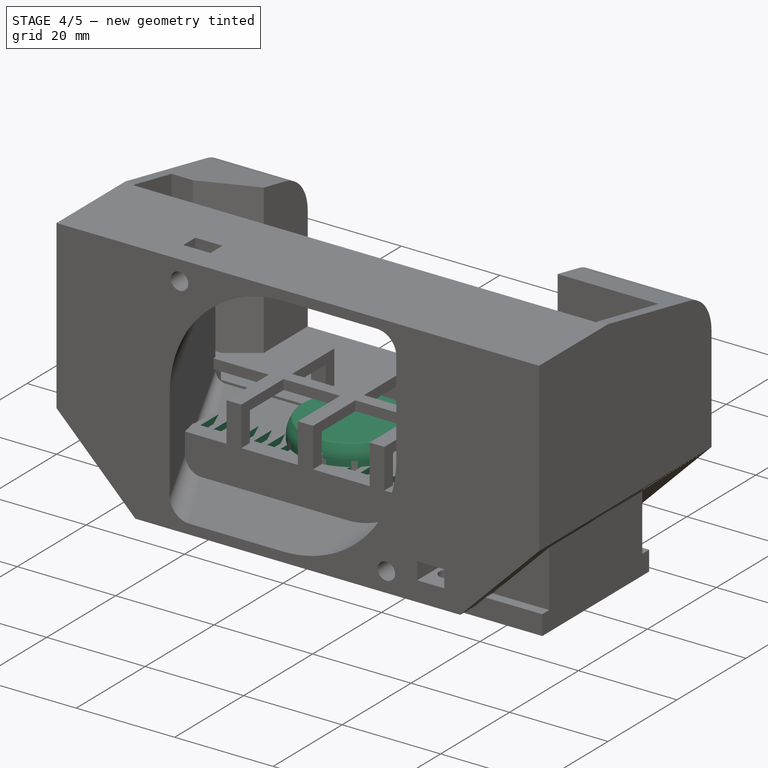
[diagram: stage 4 of 5 — iso view after this stage's code; geometry added in this stage tinted green]
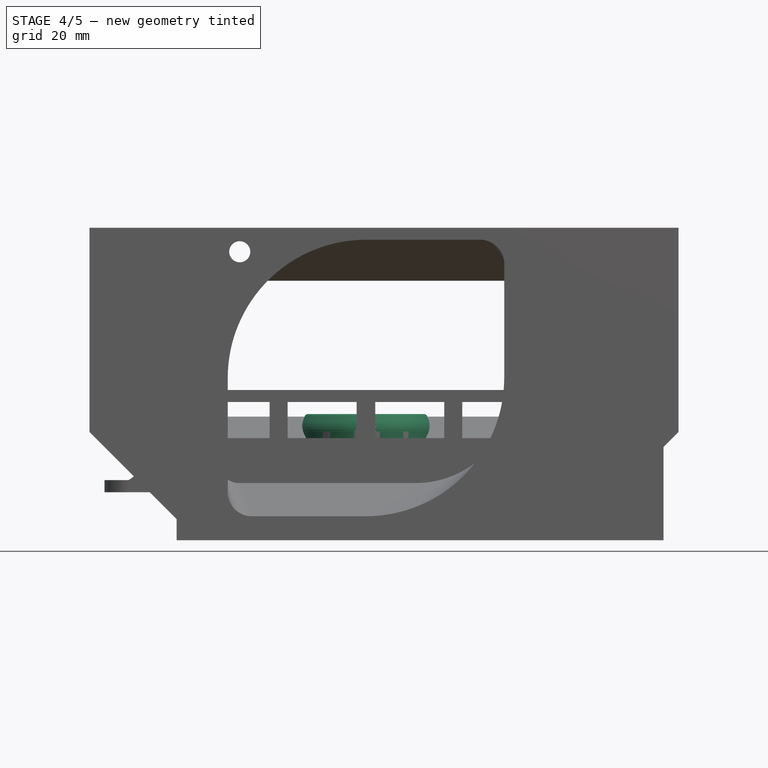
[diagram: stage 4 of 5 — front view after this stage's code; geometry added in this stage tinted green]
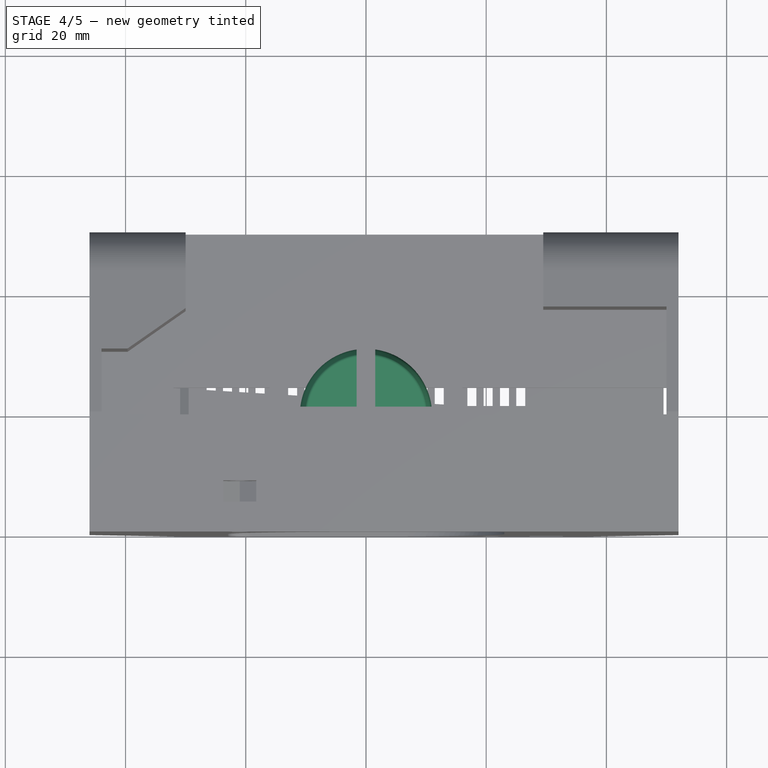
[diagram: stage 4 of 5 — top view after this stage's code; geometry added in this stage tinted green]
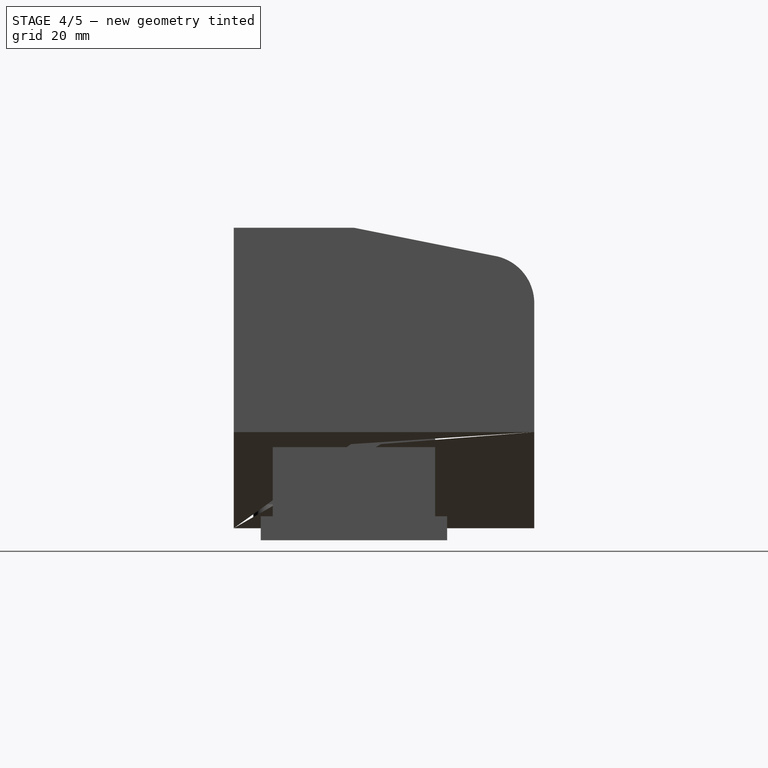
[diagram: stage 4 of 5 — right view after this stage's code; geometry added in this stage tinted green]
FEATURE [PartDesign::Body] Body005  label="5020-fan-base-drv"
  AllowCompound = false
  Group = -> [Sketch022,Pad007,Sketch023,Groove002,Sketch024,Pad008,PolarPattern002]
  Origin = -> Origin005
  Tip = -> PolarPattern002
FEATURE [Sketcher::SketchObject] Sketch025
  ArcFitTolerance = 0
  AttachmentSupport = -> [XY_Plane006]
  FullyConstrained = true
  MakeInternals = false
  MapMode = 5
  sketch-geometry (1):
    g0: Circle CenterX=0 CenterY=0 CenterZ=0 NormalX=0 NormalY=0 NormalZ=1 AngleXU=0 Radius=11
  constraints (2):
    c: Coincident(g0,g-1)
    c: Diameter(g0) = 22
FEATURE [PartDesign::Pad] Pad009
  Direction = (0,0,1)
  Length = 19
  Length2 = -2.5
  Profile = -> Sketch025
  ReferenceAxis = -> Sketch025 [N_Axis]
  Suppressed = false
  Type = 4
FEATURE [PartDesign::Chamfer] Chamfer
  Angle = 45
  Base = -> Pad009 [Edge3]
  BaseFeature = -> Pad009
  ChamferType = 1
  FlipDirection = false
  Size = 2
  Size2 = 1
  SupportTransform = false
  Suppressed = false
  UseAllEdges = false
FEATURE [PartDesign::Fillet] Fillet003
  Base = -> Chamfer [Edge2]
  BaseFeature = -> Chamfer
  Radius = 4
  SupportTransform = false
  Suppressed = false
  UseAllEdges = false
FEATURE [PartDesign::Fillet] Fillet004
  Base = -> Fillet003 [Edge7]
  BaseFeature = -> Fillet003
  Radius = 0.5
  SupportTransform = false
  Suppressed = false
  UseAllEdges = false
FEATURE [Sketcher::SketchObject] Sketch032
  ArcFitTolerance = 0
  AttachmentSupport = -> [XY_Plane008]
  FullyConstrained = true
  MakeInternals = false
  MapMode = 5
  sketch-geometry (9):
    g0: GeomPoint [constr] X=-27.5 Y=11 Z=0
    g1: LineSegment StartX=-26.5 StartY=10 StartZ=0 EndX=-25 EndY=10 EndZ=0
    g2: LineSegment StartX=-25 StartY=10 StartZ=0 EndX=-25 EndY=1.5 EndZ=0
    g3: LineSegment StartX=-25 StartY=1.5 StartZ=0 EndX=-26.5 EndY=1.5 EndZ=0
    g4: LineSegment StartX=-26.5 StartY=1.5 StartZ=0 EndX=-26.5 EndY=10 EndZ=0
    g5: LineSegment StartX=-26.5 StartY=-1.5 StartZ=0 EndX=-25 EndY=-1.5 EndZ=0
    g6: LineSegment StartX=-25 StartY=-1.5 StartZ=0 EndX=-25 EndY=-10 EndZ=0
    g7: LineSegment StartX=-25 StartY=-10 StartZ=0 EndX=-26.5 EndY=-10 EndZ=0
    g8: LineSegment StartX=-26.5 StartY=-10 StartZ=0 EndX=-26.5 EndY=-1.5 EndZ=0
  constraints (24):
    c: DistanceX(g0) = -27.5
    c: DistanceY(g0) = 11
    c: Coincident(g1,g2)
    c: Coincident(g2,g3)
    c: Coincident(g3,g4)
    c: Coincident(g4,g1)
    c: Horizontal(g1)
    c: Horizontal(g3)
    c: Vertical(g2)
    c: Vertical(g4)
    c: DistanceY(g1,g0) = 1
    c: DistanceY(g2) = 1.5
    c: DistanceX(g0,g1) = 1
    c: DistanceX(g1,g1) = 1.5
    c: Coincident(g5,g6)
    c: Coincident(g6,g7)
    c: Coincident(g7,g8)
    c: Coincident(g8,g5)
    c: Horizontal(g5)
    c: Horizontal(g7)
    c: Vertical(g6)
    c: Vertical(g8)
    c: Symmetric(g5,g3,g-1)
    c: Symmetric(g1,g6,g-1)
FEATURE [PartDesign::Pocket] Pocket010
  BaseFeature = -> Pad010
  Direction = (0,0,-1)
  Length = 5
  Length2 = 5
  Midplane = true
  Profile = -> Sketch032
  ReferenceAxis = -> Sketch032 [N_Axis]
  Suppressed = false
  Type = 1
FEATURE [PartDesign::LinearPattern] LinearPattern
  BaseFeature = -> Pocket010
  Direction = -> X_Axis008
  Length = 51.5
  Mode = 0
  Occurrences = 20
  Offset = 2.71053
  Originals = -> [Pocket010]
  Suppressed = false
  TransformMode = 0
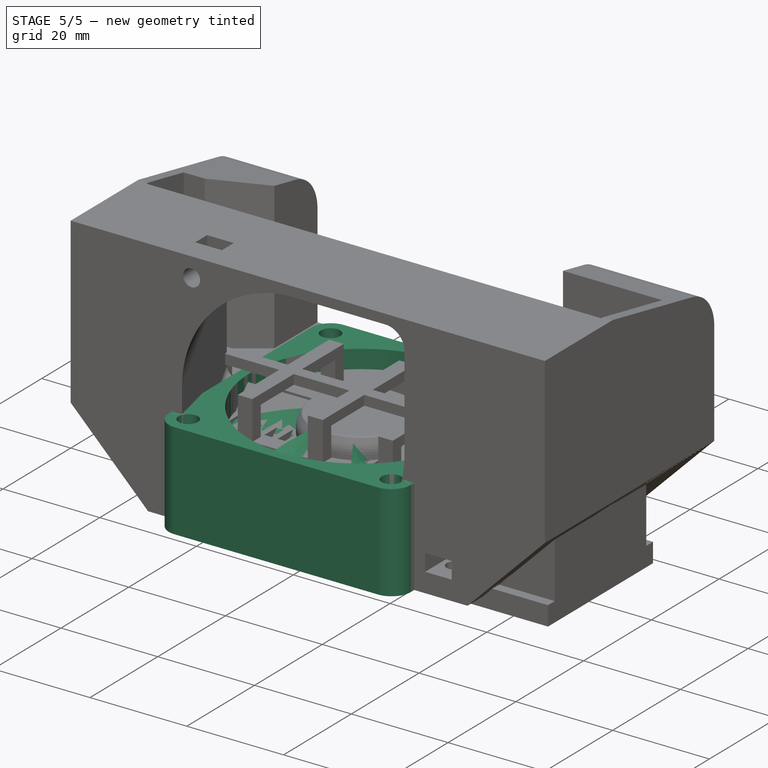
[diagram: stage 5 of 5 — iso view after this stage's code; geometry added in this stage tinted green]
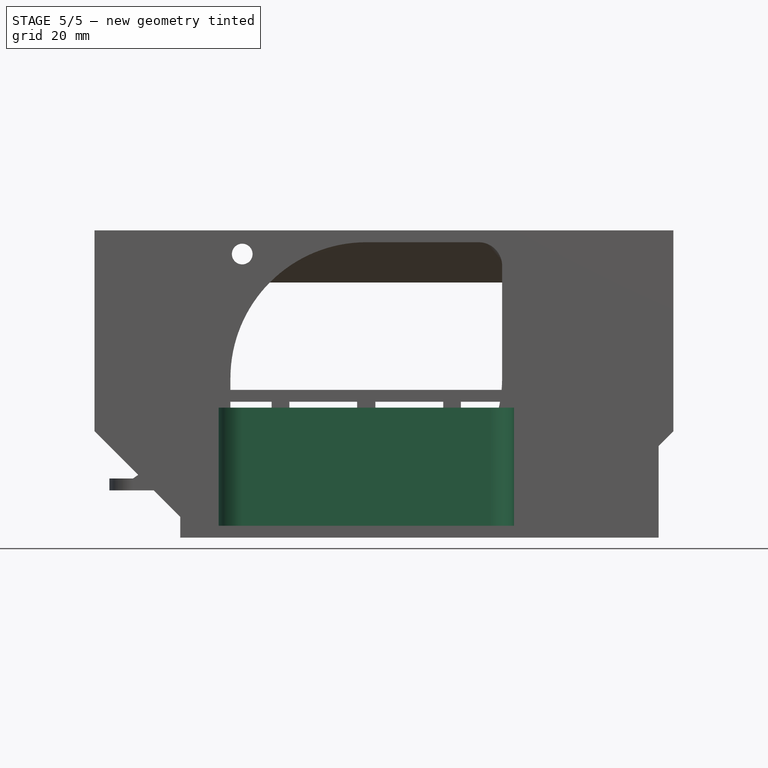
[diagram: stage 5 of 5 — front view after this stage's code; geometry added in this stage tinted green]
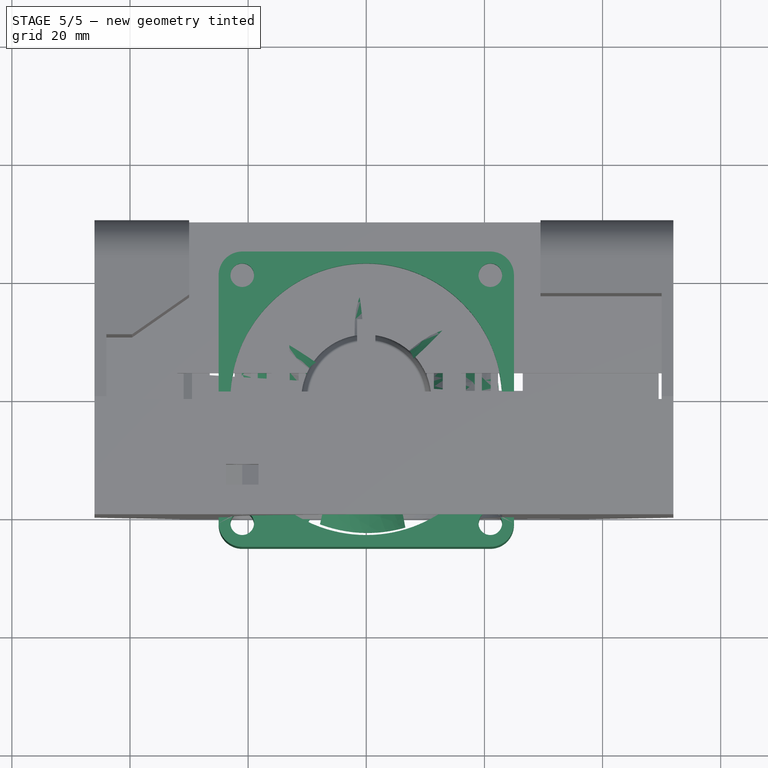
[diagram: stage 5 of 5 — top view after this stage's code; geometry added in this stage tinted green]
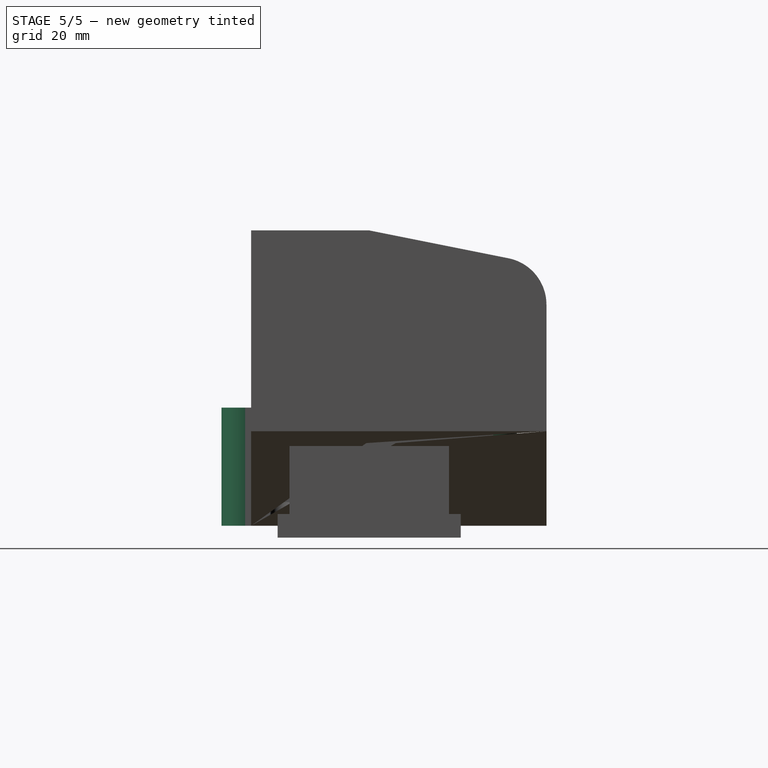
[diagram: stage 5 of 5 — right view after this stage's code; geometry added in this stage tinted green]
FEATURE [Sketcher::SketchObject] Sketch022
  ArcFitTolerance = 0
  AttachmentSupport = -> [XY_Plane005]
  FullyConstrained = true
  MakeInternals = false
  MapMode = 5
  sketch-geometry (16):
    g0: LineSegment StartX=-21 StartY=25 StartZ=0 EndX=21 EndY=25 EndZ=0
    g1: LineSegment StartX=25 StartY=21 StartZ=0 EndX=25 EndY=-21 EndZ=0
    g2: LineSegment StartX=21 StartY=-25 StartZ=0 EndX=-21 EndY=-25 EndZ=0
    g3: LineSegment StartX=-25 StartY=-21 StartZ=0 EndX=-25 EndY=21 EndZ=0
    g4: ArcOfCircle CenterX=-21 CenterY=21 CenterZ=0 NormalX=0 NormalY=0 NormalZ=1 AngleXU=0 Radius=4 StartAngle=1.5708 EndAngle=3.14159
    g5: GeomPoint [constr] X=-25 Y=25 Z=0
    g6: ArcOfCircle CenterX=21 CenterY=21 CenterZ=0 NormalX=0 NormalY=0 NormalZ=1 AngleXU=0 Radius=4 StartAngle=-9e-16 EndAngle=1.5708
    g7: GeomPoint [constr] X=25 Y=25 Z=0
    g8: ArcOfCircle CenterX=21 CenterY=-21 CenterZ=0 NormalX=0 NormalY=0 NormalZ=1 AngleXU=0 Radius=4 StartAngle=4.71239 EndAngle=6.28319
    g9: GeomPoint [constr] X=25 Y=-25 Z=0
    g10: ArcOfCircle CenterX=-21 CenterY=-21 CenterZ=0 NormalX=0 NormalY=0 NormalZ=1 AngleXU=0 Radius=4 StartAngle=3.14159 EndAngle=4.71239
    g11: GeomPoint [constr] X=-25 Y=-25 Z=0
    g12: Circle CenterX=-21 CenterY=-21 CenterZ=0 NormalX=0 NormalY=0 NormalZ=1 AngleXU=0 Radius=2
    g13: Circle CenterX=21 CenterY=-21 CenterZ=0 NormalX=0 NormalY=0 NormalZ=1 AngleXU=0 Radius=2
    g14: Circle CenterX=21 CenterY=21 CenterZ=0 NormalX=0 NormalY=0 NormalZ=1 AngleXU=0 Radius=2
    g15: Circle CenterX=-21 CenterY=21 CenterZ=0 NormalX=0 NormalY=0 NormalZ=1 AngleXU=0 Radius=2
  constraints (35):
    c: Horizontal(g0)
    c: Horizontal(g2)
    c: Vertical(g1)
    c: Vertical(g3)
    c: Symmetric(g9,g5,g-1)
    c: DistanceX(g5,g7) = 50
    c: PointOnObject(g5,g0)
    c: PointOnObject(g5,g3)
    c: Tangent(g0,g4) = 1.5708
    c: Tangent(g3,g4) = 1.5708
    c: PointOnObject(g7,g0)
    c: PointOnObject(g7,g1)
    c: Tangent(g0,g6) = 1.5708
    c: Tangent(g1,g6) = 1.5708
    c: PointOnObject(g9,g1)
    c: PointOnObject(g9,g2)
    c: Tangent(g1,g8) = 1.5708
    c: Tangent(g2,g8) = 1.5708
    c: PointOnObject(g11,g2)
    c: PointOnObject(g11,g3)
    c: Tangent(g2,g10) = 1.5708
    c: Tangent(g3,g10) = 1.5708
    c: Equal(g10,g4)
    c: Equal(g10,g6)
    c: Equal(g10,g8)
    c: Radius(g10) = 4
    c: Equal(g1,g0)
    c: Coincident(g12,g10)
    c: Coincident(g13,g8)
    c: Coincident(g14,g6)
    c: Coincident(g15,g4)
    c: Equal(g15,g14)
    c: Equal(g14,g13)
    c: Equal(g13,g12)
    c: Diameter(g15) = 4
FEATURE [PartDesign::Pad] Pad007
  Direction = (0,0,1)
  Length = 20
  Length2 = 10
  Profile = -> Sketch022
  ReferenceAxis = -> Sketch022 [N_Axis]
  Suppressed = false
  Type = 0
FEATURE [Sketcher::SketchObject] Sketch023
  ArcFitTolerance = 0
  AttachmentSupport = -> [YZ_Plane005]
  FullyConstrained = true
  MakeInternals = false
  MapMode = 5
  Placement = pos=(0,0,0) rot=(0.57735,0.57735,0.57735;2.0944rad)
  sketch-geometry (5):
    g0: LineSegment StartX=0 StartY=20 StartZ=0 EndX=23 EndY=20 EndZ=0
    g1: LineSegment StartX=23 StartY=20 StartZ=0 EndX=23 EndY=0 EndZ=0
    g2: LineSegment StartX=23 StartY=0 StartZ=0 EndX=0 EndY=0 EndZ=0
    g3: LineSegment StartX=0 StartY=0 StartZ=0 EndX=0 EndY=20 EndZ=0
    g4: GeomPoint [constr] X=25 Y=0 Z=0
  constraints (14):
    c: PointOnObject(g0,g-2)
    c: Horizontal(g0)
    c: Vertical(g1)
    c: Coincident(g1,g2)
    c: Horizontal(g2)
    c: Coincident(g2,g3)
    c: Coincident(g3,g0)
    c: PointOnObject(g4,g-1)
    c: DistanceX(g4) = 25
    c: DistanceX(g1,g4) = 2
    c: DistanceY(g3,g3) = 20
    c: PointOnObject(g2,g-1)
    c: Coincident(g0,g1)
    c: Vertical(g3)
FEATURE [PartDesign::Groove] Groove002
  Angle = 360
  Angle2 = 60
  Axis = (0,0,1)
  Base = (0,0,0)
  BaseFeature = -> Pad007
  Profile = -> Sketch023
  ReferenceAxis = -> Sketch023 [V_Axis]
  Suppressed = false
  Type = 0
FEATURE [Sketcher::SketchObject] Sketch024
  ArcFitTolerance = 0
  AttachmentSupport = -> [XY_Plane005]
  FullyConstrained = true
  MakeInternals = false
  MapMode = 5
  sketch-geometry (4):
    g0: ArcOfCircle CenterX=0 CenterY=0 CenterZ=0 NormalX=0 NormalY=0 NormalZ=1 AngleXU=0 Radius=11 StartAngle=0.15977 EndAngle=6.12342
    g1: LineSegment StartX=25 StartY=1.75 StartZ=0 EndX=10.8599 EndY=1.75 EndZ=0
    g2: LineSegment StartX=10.8599 StartY=-1.75 StartZ=0 EndX=25 EndY=-1.75 EndZ=0
    g3: LineSegment StartX=25 StartY=-1.75 StartZ=0 EndX=25 EndY=1.75 EndZ=0
  constraints (11):
    c: Coincident(g0,g-1)
    c: Diameter(g0) = 22
    c: Coincident(g2,g3)
    c: Coincident(g3,g1)
    c: Horizontal(g1)
    c: Horizontal(g2)
    c: Coincident(g0,g2)
    c: Coincident(g0,g1)
    c: Symmetric(g2,g1,g-1)
    c: DistanceY(g3,g3) = 3.5
    c: DistanceX(g1) = 25
FEATURE [PartDesign::Pad] Pad008
  BaseFeature = -> Groove002
  Direction = (0,0,1)
  Length = 2
  Length2 = 10
  Profile = -> Sketch024
  ReferenceAxis = -> Sketch024 [N_Axis]
  Refine = true
  Suppressed = false
  Type = 0
FEATURE [PartDesign::PolarPattern] PolarPattern002
  Angle = 360
  Axis = -> Sketch024 [N_Axis]
  BaseFeature = -> Pad008
  Mode = 0
  Occurrences = 3
  Offset = 120
  Originals = -> [Pad008]
  Refine = true
  Suppressed = false
  TransformMode = 0
FEATURE [Sketcher::SketchObject] Sketch026
  ArcFitTolerance = 0
  AttachmentSupport = -> [XZ_Plane006]
  FullyConstrained = false
  MakeInternals = false
  MapMode = 5
  Placement = pos=(0,0,0) rot=(1,0,0;1.5708rad)
  sketch-geometry (12):
    g0: Circle [constr] CenterX=0 CenterY=19 CenterZ=0 NormalX=0 NormalY=0 NormalZ=1 AngleXU=0 Radius=1
    g1: Circle [constr] CenterX=2.15784 CenterY=13.4293 CenterZ=0 NormalX=0 NormalY=0 NormalZ=1 AngleXU=0 Radius=1
    g2: Circle [constr] CenterX=0 CenterY=2.5 CenterZ=0 NormalX=0 NormalY=0 NormalZ=1 AngleXU=0 Radius=1
    g3: BSplineCurve PolesCount=3 KnotsCount=2 Degree=2 IsPeriodic=0
    g4: GeomPoint [constr] X=0 Y=19 Z=0
    g5: GeomPoint [constr] X=0 Y=2.5 Z=0
    g6: Circle [constr] CenterX=0 CenterY=2.5 CenterZ=0 NormalX=0 NormalY=0 NormalZ=1 AngleXU=0 Radius=1
    g7: Circle [constr] CenterX=1.10322 CenterY=12.1566 CenterZ=0 NormalX=0 NormalY=0 NormalZ=1 AngleXU=0 Radius=1
    g8: Circle [constr] CenterX=0 CenterY=19 CenterZ=0 NormalX=0 NormalY=0 NormalZ=1 AngleXU=0 Radius=1
    g9: BSplineCurve PolesCount=3 KnotsCount=2 Degree=2 IsPeriodic=0
    g10: GeomPoint [constr] X=0 Y=2.5 Z=0
    g11: GeomPoint [constr] X=0 Y=19 Z=0
  constraints (22):
    c: Weight(g0) = 1
    c: Equal(g0,g1)
    c: Equal(g0,g2)
    c: InternalAlignment(g0,g3)
    c: InternalAlignment(g1,g3)
    c: InternalAlignment(g2,g3)
    c: InternalAlignment(g4,g3)
    c: InternalAlignment(g5,g3)
    c: Weight(g6) = 1
    c: Coincident(g9,g3)
    c: Equal(g6,g7)
    c: Equal(g6,g8)
    c: Coincident(g9,g3)
    c: InternalAlignment(g6,g9)
    c: InternalAlignment(g7,g9)
    c: InternalAlignment(g8,g9)
    c: InternalAlignment(g10,g9)
    c: InternalAlignment(g11,g9)
    c: PointOnObject(g3,g-2)
    c: PointOnObject(g3,g-2)
    c: DistanceY(g3) = 19
    c: DistanceY(g3) = 2.5
FEATURE [Sketcher::SketchObject] Sketch027
  ArcFitTolerance = 0
  AttachmentOffset = pos=(0,0,10) rot=(0,0,1;0rad)
  AttachmentSupport = -> [XY_Plane006]
  FullyConstrained = true
  MakeInternals = false
  MapMode = 5
  Placement = pos=(0,0,10) rot=(0,0,1;0rad)
  sketch-geometry (1):
    g0: LineSegment StartX=0 StartY=0 StartZ=0 EndX=0 EndY=-25 EndZ=0
  constraints (3):
    c: Coincident(g0,g-1)
    c: PointOnObject(g0,g-2)
    c: DistanceY(g0,g0) = 25
FEATURE [PartDesign::AdditiveHelix] AdditiveHelix
  Angle = 0
  Axis = (0,-1,0)
  Base = (0,0,10)
  BaseFeature = -> Fillet004
  Growth = 0
  HasBeenEdited = true
  Height = 25
  LeftHanded = false
  Mode = 3
  Outside = false
  Pitch = 125
  Profile = -> Sketch026
  ReferenceAxis = -> Sketch027 [Edge1]
  Suppressed = false
  Tolerance = 0.1
  Turns = 0.2
FEATURE [PartDesign::PolarPattern] PolarPattern003
  Angle = 360
  Axis = -> Z_Axis006
  BaseFeature = -> AdditiveHelix
  Mode = 0
  Occurrences = 7
  Offset = 120
  Originals = -> [AdditiveHelix]
  Suppressed = false
  TransformMode = 0
FEATURE [Sketcher::SketchObject] Sketch028
  ArcFitTolerance = 0
  AttachmentSupport = -> [XY_Plane006]
  FullyConstrained = true
  MakeInternals = false
  MapMode = 5
  sketch-geometry (2):
    g0: Circle CenterX=0 CenterY=0 CenterZ=0 NormalX=0 NormalY=0 NormalZ=1 AngleXU=0 Radius=22.5
    g1: Circle CenterX=0 CenterY=0 CenterZ=0 NormalX=0 NormalY=0 NormalZ=1 AngleXU=0 Radius=40
  constraints (4):
    c: Coincident(g0,g-1)
    c: Coincident(g1,g0)
    c: Diameter(g1) = 80
    c: Diameter(g0) = 45
FEATURE [PartDesign::Pocket] Pocket014
  BaseFeature = -> PolarPattern003
  Direction = (0,0,-1)
  Length = 5
  Length2 = 5
  Midplane = true
  Profile = -> Sketch028
  ReferenceAxis = -> Sketch028 [N_Axis]
  Suppressed = false
  Type = 1
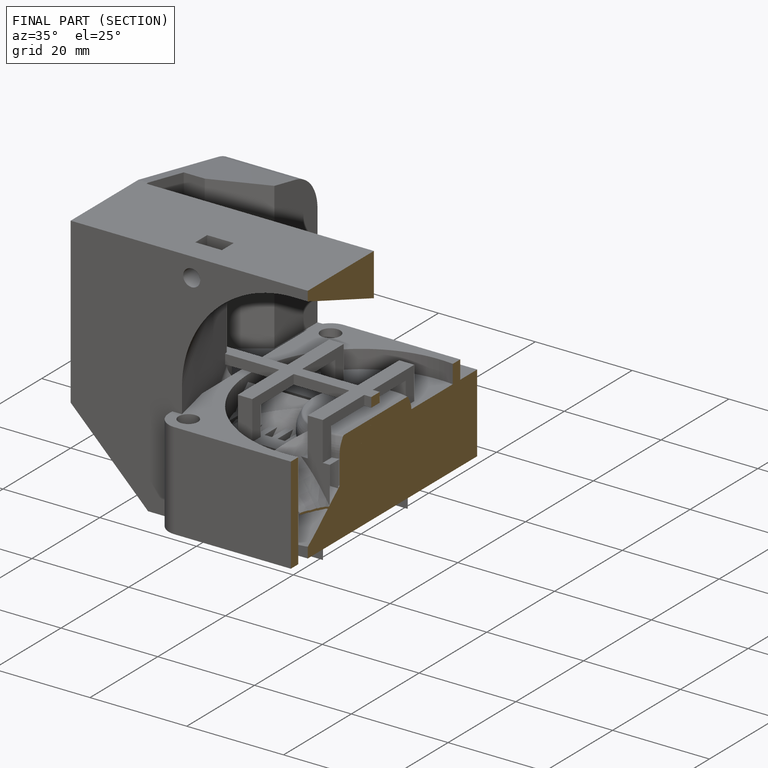
[diagram: finished part — half-section view (interior)]
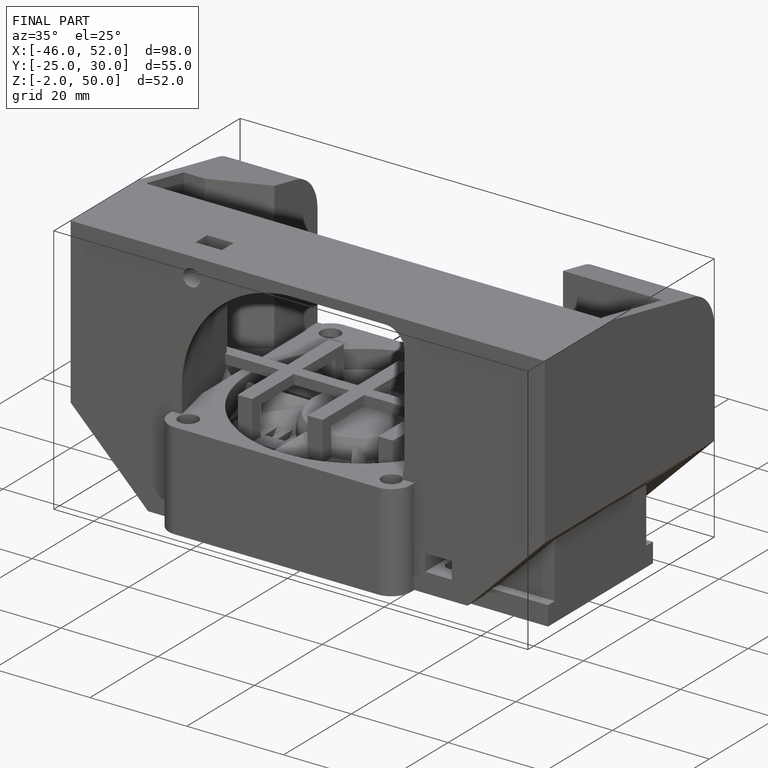
[diagram: finished part — iso view with bounding-box wireframe]
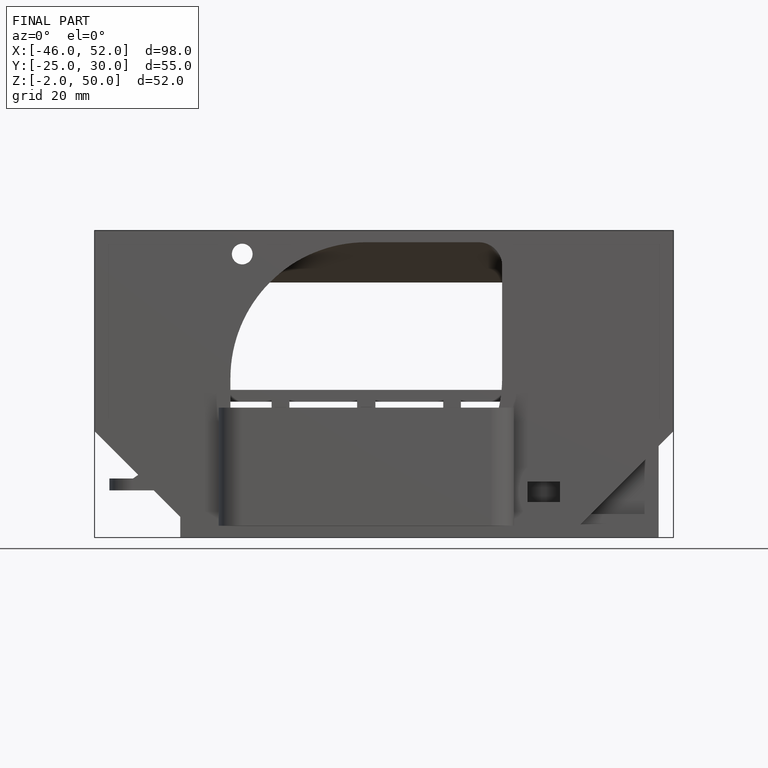
[diagram: finished part — front view with bounding-box wireframe]
